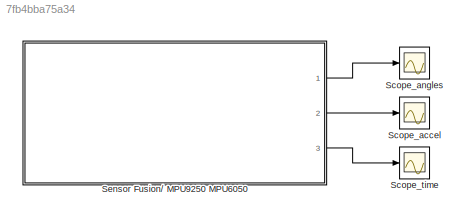
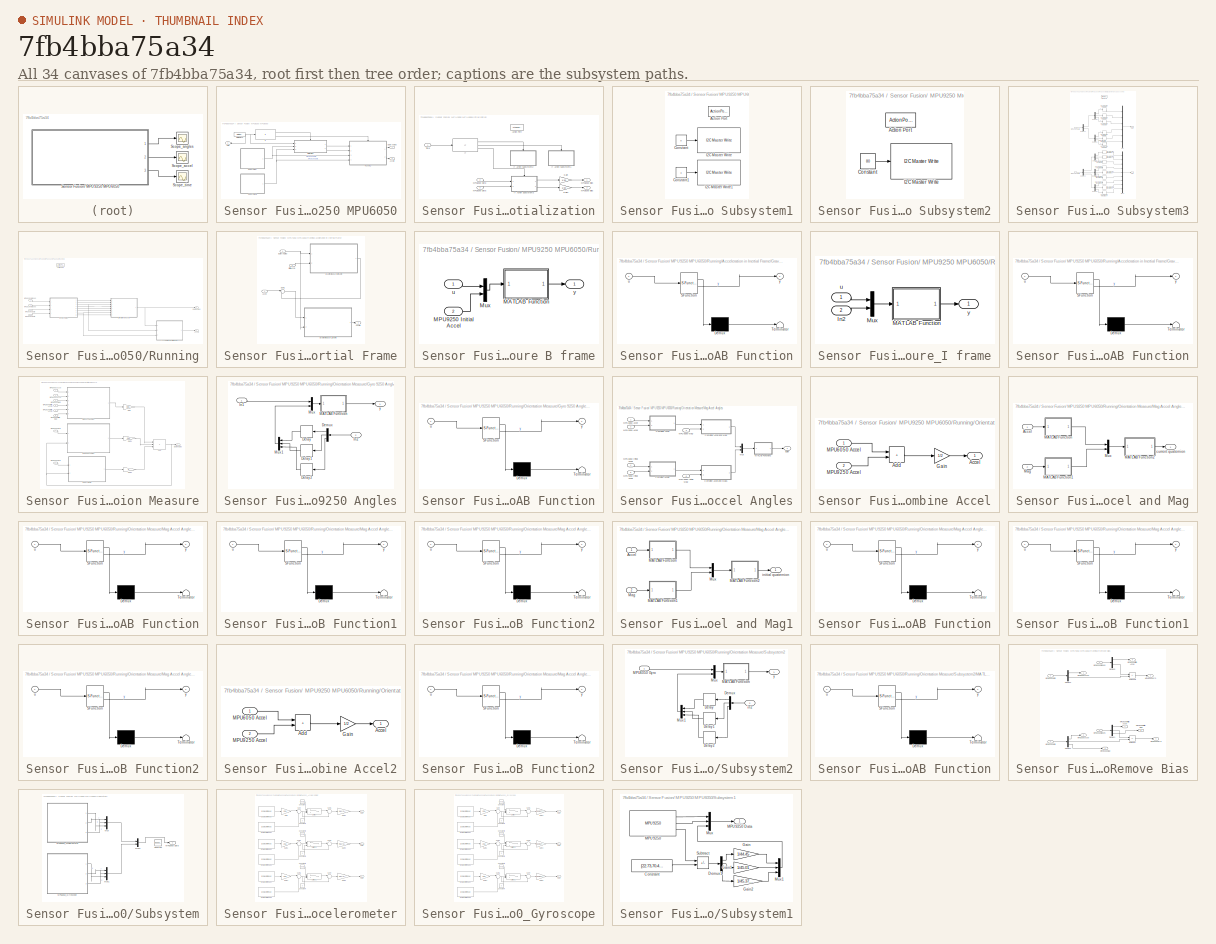
[diagram: thumbnail index - all 34 canvases of the model, root first then tree order]
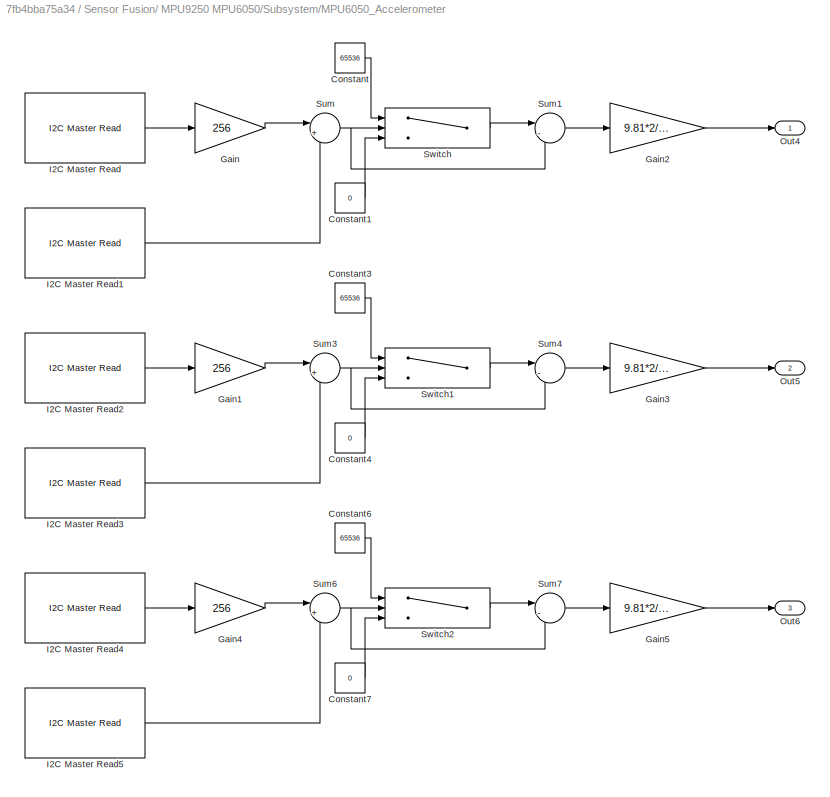
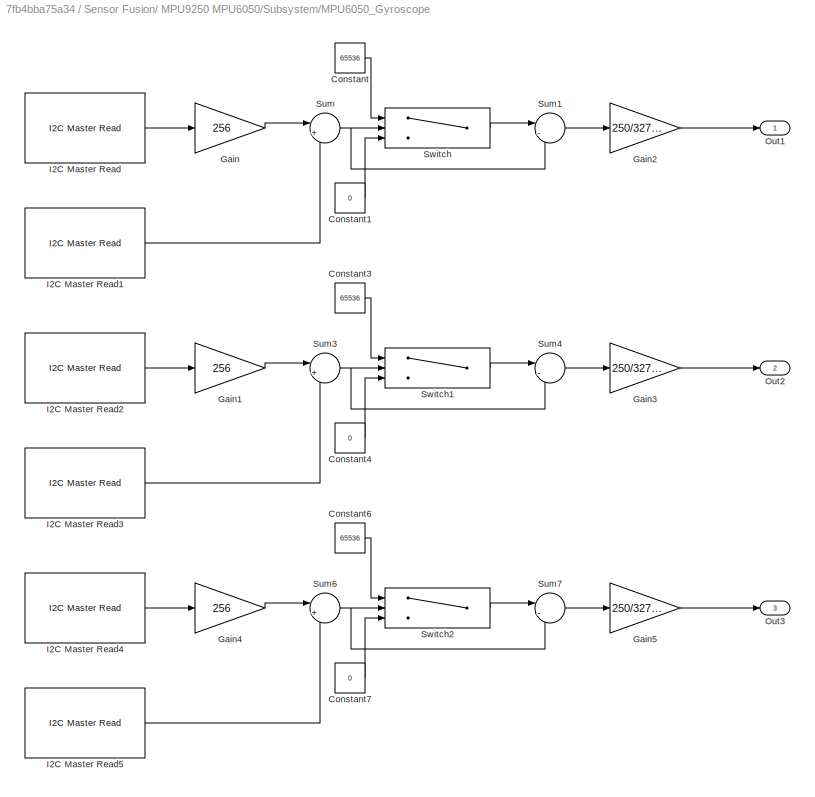
MODEL slx_7fb4bba75a34
KIND model
CONFIG AbsTol = auto
CONFIG EnableMultiTasking = on
CONFIG FixedStep = auto
CONFIG MaxStep = auto
CONFIG MinStep = auto
CONFIG RelTol = 1e-3
CONFIG SampleTimeConstraint = Unconstrained
CONFIG SolverName = FixedStepAuto
CONFIG StartTime = 0.0
CONFIG StopTime = 2000
BLOCK [Scope] Scope_accel
  Floating = off
  NumInputPorts = 1
  Ports = [1]
  ScopeSpecificationString = Simulink.scopes.TimeScopeBlockCfg('CurrentConfiguration', extmgr.ConfigurationSet(extmgr.Configuration('Core','General UI',true),extmgr.Configuration('Core','Source UI',true),extmgr.Configuration('Sources','WiredSimulink',true,'DataLoggingVariableName','ScopeData2'),extmgr.Configuration('Visuals','Time Domain',true,'SerializedDisplays',{struct('MinYLimReal','-1.65482','MaxYLimReal','3.68909','YLab...<+1486ch>
BLOCK [Scope] Scope_angles
  ExtModeLoggingTrig = on
  Floating = off
  NumInputPorts = 1
  Ports = [1]
  ScopeSpecificationString = Simulink.scopes.TimeScopeBlockCfg('CurrentConfiguration', extmgr.ConfigurationSet(extmgr.Configuration('Core','General UI',true),extmgr.Configuration('Core','Source UI',true),extmgr.Configuration('Sources','WiredSimulink',true,'DataLoggingVariableName','ScopeData1','DataLogging',true,'DataLoggingSaveFormat','StructureWithTime'),extmgr.Configuration('Visuals','Time Domain',true,'SerializedDisplays'...<+1667ch>
BLOCK [Scope] Scope_time
  Floating = off
  NumInputPorts = 1
  Ports = [1]
  ScopeSpecificationString = Simulink.scopes.TimeScopeBlockCfg('CurrentConfiguration', extmgr.ConfigurationSet(extmgr.Configuration('Core','General UI',true),extmgr.Configuration('Core','Source UI',true),extmgr.Configuration('Sources','WiredSimulink',true,'DataLoggingVariableName','ScopeData1','DataLogging',true,'DataLoggingSaveFormat','StructureWithTime'),extmgr.Configuration('Visuals','Time Domain',true,'SerializedDisplays'...<+1559ch>
BLOCK [SubSystem] Sensor Fusion// MPU9250 MPU6050
  Ports = [0, 3]
  RequestExecContextInheritance = off
BLOCK [Outport] Sensor Fusion// MPU9250 MPU6050/Accel//I
  Port = 2
BLOCK [DigitalClock] Sensor Fusion// MPU9250 MPU6050/Digital Clock
  SampleTime = 0.1
BLOCK [Outport] Sensor Fusion// MPU9250 MPU6050/Euler Angles
BLOCK [If] Sensor Fusion// MPU9250 MPU6050/If
  IfExpression = u1 < 31
  Ports = [1, 2]
BLOCK [SubSystem] Sensor Fusion// MPU9250 MPU6050/Intialization
  Ports = [3, 2, 0, 0, 0, 0, 0, 1]
  RequestExecContextInheritance = off
  TreatAsAtomicUnit = on
BLOCK [ActionPort] Sensor Fusion// MPU9250 MPU6050/Intialization/Action Port
  ActionPortLabel = if(u1 < 31)
BLOCK [Gain] Sensor Fusion// MPU9250 MPU6050/Intialization/Gain
  Gain = 1/30
BLOCK [Gain] Sensor Fusion// MPU9250 MPU6050/Intialization/Gain1
  Gain = 1/30
BLOCK [If] Sensor Fusion// MPU9250 MPU6050/Intialization/If
  ElseIfExpressions = u1<=1
  IfExpression = u1 < 0.2
  Ports = [1, 3]
BLOCK [SubSystem] Sensor Fusion// MPU9250 MPU6050/Intialization/If Action Subsystem1
  Ports = [0, 0, 0, 0, 0, 0, 0, 1]
  RequestExecContextInheritance = off
  TreatAsAtomicUnit = on
BLOCK [ActionPort] Sensor Fusion// MPU9250 MPU6050/Intialization/If Action Subsystem1/Action Port
  ActionPortLabel = elseif(u1<=1)
BLOCK [Constant] Sensor Fusion// MPU9250 MPU6050/Intialization/If Action Subsystem1/Constant
  Value = 0
BLOCK [Constant] Sensor Fusion// MPU9250 MPU6050/Intialization/If Action Subsystem1/Constant1
  Value = 3
BLOCK [Reference] Sensor Fusion// MPU9250 MPU6050/Intialization/If Action Subsystem1/I2C Master Write  REF=bbblueCommlib/I2C Master Write
  Ports = [1]
  SourceBlock = bbblueCommlib/I2C Master Write
  SourceProductBaseCode = SC_BEAGLEBONE_BLUE
  SourceType = beagleboneblue.bbblueI2CMasterWrite
BLOCK [Reference] Sensor Fusion// MPU9250 MPU6050/Intialization/If Action Subsystem1/I2C Master Write1  REF=bbblueCommlib/I2C Master Write
  Ports = [1]
  SourceBlock = bbblueCommlib/I2C Master Write
  SourceProductBaseCode = SC_BEAGLEBONE_BLUE
  SourceType = beagleboneblue.bbblueI2CMasterWrite
BLOCK [SubSystem] Sensor Fusion// MPU9250 MPU6050/Intialization/If Action Subsystem2
  Ports = [0, 0, 0, 0, 0, 0, 0, 1]
  RequestExecContextInheritance = off
  TreatAsAtomicUnit = on
BLOCK [ActionPort] Sensor Fusion// MPU9250 MPU6050/Intialization/If Action Subsystem2/Action Port
  ActionPortLabel = if(u1 < 0.2)
BLOCK [Constant] Sensor Fusion// MPU9250 MPU6050/Intialization/If Action Subsystem2/Constant
  Value = 80
BLOCK [Reference] Sensor Fusion// MPU9250 MPU6050/Intialization/If Action Subsystem2/I2C Master Write  REF=bbblueCommlib/I2C Master Write
  Ports = [1]
  SourceBlock = bbblueCommlib/I2C Master Write
  SourceProductBaseCode = SC_BEAGLEBONE_BLUE
  SourceType = beagleboneblue.bbblueI2CMasterWrite
BLOCK [SubSystem] Sensor Fusion// MPU9250 MPU6050/Intialization/If Action Subsystem3
  Ports = [2, 2, 0, 0, 0, 0, 0, 1]
  RequestExecContextInheritance = off
  TreatAsAtomicUnit = on
BLOCK [ActionPort] Sensor Fusion// MPU9250 MPU6050/Intialization/If Action Subsystem3/Action Port
  ActionPortLabel = else
BLOCK [Demux] Sensor Fusion// MPU9250 MPU6050/Intialization/If Action Subsystem3/Demux
  Outputs = 3
  Ports = [1, 3]
BLOCK [Demux] Sensor Fusion// MPU9250 MPU6050/Intialization/If Action Subsystem3/Demux1
  Outputs = 3
  Ports = [1, 3]
BLOCK [Demux] Sensor Fusion// MPU9250 MPU6050/Intialization/If Action Subsystem3/Demux2
  Outputs = 3
  Ports = [1, 3]
BLOCK [Demux] Sensor Fusion// MPU9250 MPU6050/Intialization/If Action Subsystem3/Demux3
  Outputs = 3
  Ports = [1, 3]
BLOCK [Demux] Sensor Fusion// MPU9250 MPU6050/Intialization/If Action Subsystem3/Demux4
  Outputs = 2
  Ports = [1, 2]
BLOCK [Demux] Sensor Fusion// MPU9250 MPU6050/Intialization/If Action Subsystem3/Demux5
  Outputs = 3
  Ports = [1, 3]
BLOCK [Demux] Sensor Fusion// MPU9250 MPU6050/Intialization/If Action Subsystem3/Demux6
  Outputs = 3
  Ports = [1, 3]
BLOCK [DiscreteIntegrator] Sensor Fusion// MPU9250 MPU6050/Intialization/If Action Subsystem3/Discrete-Time Integrator
  ICPrevOutput = DiscIntNeverNeededParam
  ICPrevScaledInput = DiscIntNeverNeededParam
  InitialConditionSetting = Auto
  Ports = [1, 1]
  SampleTime = -1
BLOCK [DiscreteIntegrator] Sensor Fusion// MPU9250 MPU6050/Intialization/If Action Subsystem3/Discrete-Time Integrator1
  ICPrevOutput = DiscIntNeverNeededParam
  ICPrevScaledInput = DiscIntNeverNeededParam
  InitialConditionSetting = Auto
  Ports = [1, 1]
  SampleTime = -1
BLOCK [DiscreteIntegrator] Sensor Fusion// MPU9250 MPU6050/Intialization/If Action Subsystem3/Discrete-Time Integrator10
  ICPrevOutput = DiscIntNeverNeededParam
  ICPrevScaledInput = DiscIntNeverNeededParam
  InitialConditionSetting = Auto
  Ports = [1, 1]
  SampleTime = -1
BLOCK [DiscreteIntegrator] Sensor Fusion// MPU9250 MPU6050/Intialization/If Action Subsystem3/Discrete-Time Integrator11
  ICPrevOutput = DiscIntNeverNeededParam
  ICPrevScaledInput = DiscIntNeverNeededParam
  InitialConditionSetting = Auto
  Ports = [1, 1]
  SampleTime = -1
BLOCK [DiscreteIntegrator] Sensor Fusion// MPU9250 MPU6050/Intialization/If Action Subsystem3/Discrete-Time Integrator12
  ICPrevOutput = DiscIntNeverNeededParam
  ICPrevScaledInput = DiscIntNeverNeededParam
  InitialConditionSetting = Auto
  Ports = [1, 1]
  SampleTime = -1
BLOCK [DiscreteIntegrator] Sensor Fusion// MPU9250 MPU6050/Intialization/If Action Subsystem3/Discrete-Time Integrator13
  ICPrevOutput = DiscIntNeverNeededParam
  ICPrevScaledInput = DiscIntNeverNeededParam
  InitialConditionSetting = Auto
  Ports = [1, 1]
  SampleTime = -1
BLOCK [DiscreteIntegrator] Sensor Fusion// MPU9250 MPU6050/Intialization/If Action Subsystem3/Discrete-Time Integrator14
  ICPrevOutput = DiscIntNeverNeededParam
  ICPrevScaledInput = DiscIntNeverNeededParam
  InitialConditionSetting = Auto
  Ports = [1, 1]
  SampleTime = -1
BLOCK [DiscreteIntegrator] Sensor Fusion// MPU9250 MPU6050/Intialization/If Action Subsystem3/Discrete-Time Integrator2
  ICPrevOutput = DiscIntNeverNeededParam
  ICPrevScaledInput = DiscIntNeverNeededParam
  InitialConditionSetting = Auto
  Ports = [1, 1]
  SampleTime = -1
BLOCK [DiscreteIntegrator] Sensor Fusion// MPU9250 MPU6050/Intialization/If Action Subsystem3/Discrete-Time Integrator3
  ICPrevOutput = DiscIntNeverNeededParam
  ICPrevScaledInput = DiscIntNeverNeededParam
  InitialConditionSetting = Auto
  Ports = [1, 1]
  SampleTime = -1
BLOCK [DiscreteIntegrator] Sensor Fusion// MPU9250 MPU6050/Intialization/If Action Subsystem3/Discrete-Time Integrator4
  ICPrevOutput = DiscIntNeverNeededParam
  ICPrevScaledInput = DiscIntNeverNeededParam
  InitialConditionSetting = Auto
  Ports = [1, 1]
  SampleTime = -1
BLOCK [DiscreteIntegrator] Sensor Fusion// MPU9250 MPU6050/Intialization/If Action Subsystem3/Discrete-Time Integrator5
  ICPrevOutput = DiscIntNeverNeededParam
  ICPrevScaledInput = DiscIntNeverNeededParam
  InitialConditionSetting = Auto
  Ports = [1, 1]
  SampleTime = -1
BLOCK [DiscreteIntegrator] Sensor Fusion// MPU9250 MPU6050/Intialization/If Action Subsystem3/Discrete-Time Integrator6
  ICPrevOutput = DiscIntNeverNeededParam
  ICPrevScaledInput = DiscIntNeverNeededParam
  InitialConditionSetting = Auto
  Ports = [1, 1]
  SampleTime = -1
BLOCK [DiscreteIntegrator] Sensor Fusion// MPU9250 MPU6050/Intialization/If Action Subsystem3/Discrete-Time Integrator7
  ICPrevOutput = DiscIntNeverNeededParam
  ICPrevScaledInput = DiscIntNeverNeededParam
  InitialConditionSetting = Auto
  Ports = [1, 1]
  SampleTime = -1
BLOCK [DiscreteIntegrator] Sensor Fusion// MPU9250 MPU6050/Intialization/If Action Subsystem3/Discrete-Time Integrator8
  ICPrevOutput = DiscIntNeverNeededParam
  ICPrevScaledInput = DiscIntNeverNeededParam
  InitialConditionSetting = Auto
  Ports = [1, 1]
  SampleTime = -1
BLOCK [DiscreteIntegrator] Sensor Fusion// MPU9250 MPU6050/Intialization/If Action Subsystem3/Discrete-Time Integrator9
  ICPrevOutput = DiscIntNeverNeededParam
  ICPrevScaledInput = DiscIntNeverNeededParam
  InitialConditionSetting = Auto
  Ports = [1, 1]
  SampleTime = -1
BLOCK [Inport] Sensor Fusion// MPU9250 MPU6050/Intialization/If Action Subsystem3/MPU6050 Data
BLOCK [Inport] Sensor Fusion// MPU9250 MPU6050/Intialization/If Action Subsystem3/MPU9250 Data
  Port = 2
BLOCK [Mux] Sensor Fusion// MPU9250 MPU6050/Intialization/If Action Subsystem3/Mux
  DisplayOption = bar
  Inputs = 6
  Ports = [6, 1]
BLOCK [Mux] Sensor Fusion// MPU9250 MPU6050/Intialization/If Action Subsystem3/Mux1
  DisplayOption = bar
  Inputs = 9
  Ports = [9, 1]
BLOCK [Outport] Sensor Fusion// MPU9250 MPU6050/Intialization/If Action Subsystem3/Out1
BLOCK [Outport] Sensor Fusion// MPU9250 MPU6050/Intialization/If Action Subsystem3/Out2
  Port = 2
BLOCK [Outport] Sensor Fusion// MPU9250 MPU6050/Intialization/MPU6050 Bias
BLOCK [Inport] Sensor Fusion// MPU9250 MPU6050/Intialization/MPU6050 Data
  Port = 2
BLOCK [Outport] Sensor Fusion// MPU9250 MPU6050/Intialization/MPU9250 Bias
  Port = 2
BLOCK [Inport] Sensor Fusion// MPU9250 MPU6050/Intialization/MPU9250 Data
  Port = 3
BLOCK [Inport] Sensor Fusion// MPU9250 MPU6050/Intialization/Time
BLOCK [SubSystem] Sensor Fusion// MPU9250 MPU6050/Running
  Ports = [4, 2, 0, 0, 0, 0, 0, 1]
  RequestExecContextInheritance = off
  TreatAsAtomicUnit = on
BLOCK [Outport] Sensor Fusion// MPU9250 MPU6050/Running/Accel//I
  Port = 2
BLOCK [SubSystem] Sensor Fusion// MPU9250 MPU6050/Running/Acceleration in Inertial Frame
  Ports = [3, 1]
  RequestExecContextInheritance = off
BLOCK [Inport] Sensor Fusion// MPU9250 MPU6050/Running/Acceleration in Inertial Frame/Accel
  Port = 2
BLOCK [Outport] Sensor Fusion// MPU9250 MPU6050/Running/Acceleration in Inertial Frame/Accel//I
BLOCK [Inport] Sensor Fusion// MPU9250 MPU6050/Running/Acceleration in Inertial Frame/Euler Angles
BLOCK [SubSystem] Sensor Fusion// MPU9250 MPU6050/Running/Acceleration in Inertial Frame/Gravity Measure B frame
  Ports = [2, 1]
  RequestExecContextInheritance = off
BLOCK [SubSystem] Sensor Fusion// MPU9250 MPU6050/Running/Acceleration in Inertial Frame/Gravity Measure B frame/MATLAB Function
  ErrorFcn = Stateflow.Translate.translate
  PermitHierarchicalResolution = ExplicitOnly
  Ports = [1, 1]
  RequestExecContextInheritance = off
  SFBlockType = MATLAB Function
  TreatAsAtomicUnit = on
BLOCK [Demux] Sensor Fusion// MPU9250 MPU6050/Running/Acceleration in Inertial Frame/Gravity Measure B frame/MATLAB Function/ Demux 
  Outputs = 1
  Ports = [1, 1]
BLOCK [S-Function] Sensor Fusion// MPU9250 MPU6050/Running/Acceleration in Inertial Frame/Gravity Measure B frame/MATLAB Function/ SFunction 
  EnableBusSupport = on
  FunctionName = sf_sfun
  PortCounts = [1 2]
  Ports = [1, 2]
  SFcnIsStateOwnerBlock = off
  SFunctionDeploymentMode = off
  Tag = Stateflow S-Function 12
BLOCK [Terminator] Sensor Fusion// MPU9250 MPU6050/Running/Acceleration in Inertial Frame/Gravity Measure B frame/MATLAB Function/ Terminator 
BLOCK [Inport] Sensor Fusion// MPU9250 MPU6050/Running/Acceleration in Inertial Frame/Gravity Measure B frame/MATLAB Function/u
BLOCK [Outport] Sensor Fusion// MPU9250 MPU6050/Running/Acceleration in Inertial Frame/Gravity Measure B frame/MATLAB Function/y
BLOCK [Inport] Sensor Fusion// MPU9250 MPU6050/Running/Acceleration in Inertial Frame/Gravity Measure B frame/MPU9250 Initial Accel
  Port = 2
BLOCK [Mux] Sensor Fusion// MPU9250 MPU6050/Running/Acceleration in Inertial Frame/Gravity Measure B frame/Mux
  DisplayOption = bar
  Inputs = 2
  Ports = [2, 1]
BLOCK [Inport] Sensor Fusion// MPU9250 MPU6050/Running/Acceleration in Inertial Frame/Gravity Measure B frame/u
BLOCK [Outport] Sensor Fusion// MPU9250 MPU6050/Running/Acceleration in Inertial Frame/Gravity Measure B frame/y
BLOCK [SubSystem] Sensor Fusion// MPU9250 MPU6050/Running/Acceleration in Inertial Frame/Gravity Measure_I frame
  Ports = [2, 1]
  RequestExecContextInheritance = off
BLOCK [Inport] Sensor Fusion// MPU9250 MPU6050/Running/Acceleration in Inertial Frame/Gravity Measure_I frame/In2
  Port = 2
BLOCK [SubSystem] Sensor Fusion// MPU9250 MPU6050/Running/Acceleration in Inertial Frame/Gravity Measure_I frame/MATLAB Function
  ErrorFcn = Stateflow.Translate.translate
  PermitHierarchicalResolution = ExplicitOnly
  Ports = [1, 1]
  RequestExecContextInheritance = off
  SFBlockType = MATLAB Function
  TreatAsAtomicUnit = on
BLOCK [Demux] Sensor Fusion// MPU9250 MPU6050/Running/Acceleration in Inertial Frame/Gravity Measure_I frame/MATLAB Function/ Demux 
  Outputs = 1
  Ports = [1, 1]
BLOCK [S-Function] Sensor Fusion// MPU9250 MPU6050/Running/Acceleration in Inertial Frame/Gravity Measure_I frame/MATLAB Function/ SFunction 
  EnableBusSupport = on
  FunctionName = sf_sfun
  PortCounts = [1 2]
  Ports = [1, 2]
  SFcnIsStateOwnerBlock = off
  SFunctionDeploymentMode = off
  Tag = Stateflow S-Function 14
BLOCK [Terminator] Sensor Fusion// MPU9250 MPU6050/Running/Acceleration in Inertial Frame/Gravity Measure_I frame/MATLAB Function/ Terminator 
BLOCK [Inport] Sensor Fusion// MPU9250 MPU6050/Running/Acceleration in Inertial Frame/Gravity Measure_I frame/MATLAB Function/u
BLOCK [Outport] Sensor Fusion// MPU9250 MPU6050/Running/Acceleration in Inertial Frame/Gravity Measure_I frame/MATLAB Function/y
BLOCK [Mux] Sensor Fusion// MPU9250 MPU6050/Running/Acceleration in Inertial Frame/Gravity Measure_I frame/Mux
  DisplayOption = bar
  Inputs = 2
  Ports = [2, 1]
BLOCK [Inport] Sensor Fusion// MPU9250 MPU6050/Running/Acceleration in Inertial Frame/Gravity Measure_I frame/u
BLOCK [Outport] Sensor Fusion// MPU9250 MPU6050/Running/Acceleration in Inertial Frame/Gravity Measure_I frame/y
BLOCK [Inport] Sensor Fusion// MPU9250 MPU6050/Running/Acceleration in Inertial Frame/Initial Accel
  Port = 3
BLOCK [Sum] Sensor Fusion// MPU9250 MPU6050/Running/Acceleration in Inertial Frame/Sum1
  Inputs = |+-
  Ports = [2, 1]
BLOCK [ActionPort] Sensor Fusion// MPU9250 MPU6050/Running/Action Port
  ActionPortLabel = else
BLOCK [Outport] Sensor Fusion// MPU9250 MPU6050/Running/Euler Angles
BLOCK [Inport] Sensor Fusion// MPU9250 MPU6050/Running/MPU6050 Biases
BLOCK [Inport] Sensor Fusion// MPU9250 MPU6050/Running/MPU6050 Data
  Port = 3
BLOCK [Inport] Sensor Fusion// MPU9250 MPU6050/Running/MPU9250 Biases
  Port = 2
BLOCK [Inport] Sensor Fusion// MPU9250 MPU6050/Running/MPU9250 Data
  Port = 4
BLOCK [SubSystem] Sensor Fusion// MPU9250 MPU6050/Running/Orientation Measure
  Ports = [8, 1]
  RequestExecContextInheritance = off
BLOCK [Inport] Sensor Fusion// MPU9250 MPU6050/Running/Orientation Measure/ MPU9250 Mag
  Port = 5
BLOCK [Outport] Sensor Fusion// MPU9250 MPU6050/Running/Orientation Measure/Euler Angles
BLOCK [Gain] Sensor Fusion// MPU9250 MPU6050/Running/Orientation Measure/Gain
  Gain = 0.05
BLOCK [Gain] Sensor Fusion// MPU9250 MPU6050/Running/Orientation Measure/Gain1
  Gain = 0.95
BLOCK [Gain] Sensor Fusion// MPU9250 MPU6050/Running/Orientation Measure/Gain2
  Gain = 0
BLOCK [SubSystem] Sensor Fusion// MPU9250 MPU6050/Running/Orientation Measure/Gyro 9250 Angles
  Ports = [2, 1]
  RequestExecContextInheritance = off
BLOCK [Delay] Sensor Fusion// MPU9250 MPU6050/Running/Orientation Measure/Gyro 9250 Angles/Delay
  DelayLength = 1
  InputPortMap = u0
  Ports = [1, 1]
BLOCK [Delay] Sensor Fusion// MPU9250 MPU6050/Running/Orientation Measure/Gyro 9250 Angles/Delay1
  DelayLength = 1
  InputPortMap = u0
  Ports = [1, 1]
BLOCK [Delay] Sensor Fusion// MPU9250 MPU6050/Running/Orientation Measure/Gyro 9250 Angles/Delay2
  DelayLength = 1
  InputPortMap = u0
  Ports = [1, 1]
BLOCK [Demux] Sensor Fusion// MPU9250 MPU6050/Running/Orientation Measure/Gyro 9250 Angles/Demux
  Outputs = 3
  Ports = [1, 3]
BLOCK [Inport] Sensor Fusion// MPU9250 MPU6050/Running/Orientation Measure/Gyro 9250 Angles/In1
BLOCK [Inport] Sensor Fusion// MPU9250 MPU6050/Running/Orientation Measure/Gyro 9250 Angles/In2
  Port = 2
BLOCK [SubSystem] Sensor Fusion// MPU9250 MPU6050/Running/Orientation Measure/Gyro 9250 Angles/MATLAB Function
  ErrorFcn = Stateflow.Translate.translate
  PermitHierarchicalResolution = ExplicitOnly
  Ports = [1, 1]
  RequestExecContextInheritance = off
  SFBlockType = MATLAB Function
  TreatAsAtomicUnit = on
BLOCK [Demux] Sensor Fusion// MPU9250 MPU6050/Running/Orientation Measure/Gyro 9250 Angles/MATLAB Function/ Demux 
  Outputs = 1
  Ports = [1, 1]
BLOCK [S-Function] Sensor Fusion// MPU9250 MPU6050/Running/Orientation Measure/Gyro 9250 Angles/MATLAB Function/ SFunction 
  EnableBusSupport = on
  FunctionName = sf_sfun
  PortCounts = [1 2]
  Ports = [1, 2]
  SFcnIsStateOwnerBlock = off
  SFunctionDeploymentMode = off
  Tag = Stateflow S-Function 4
BLOCK [Terminator] Sensor Fusion// MPU9250 MPU6050/Running/Orientation Measure/Gyro 9250 Angles/MATLAB Function/ Terminator 
BLOCK [Inport] Sensor Fusion// MPU9250 MPU6050/Running/Orientation Measure/Gyro 9250 Angles/MATLAB Function/u
BLOCK [Outport] Sensor Fusion// MPU9250 MPU6050/Running/Orientation Measure/Gyro 9250 Angles/MATLAB Function/y
BLOCK [Mux] Sensor Fusion// MPU9250 MPU6050/Running/Orientation Measure/Gyro 9250 Angles/Mux
  DisplayOption = bar
  Inputs = 2
  Ports = [2, 1]
BLOCK [Mux] Sensor Fusion// MPU9250 MPU6050/Running/Orientation Measure/Gyro 9250 Angles/Mux1
  DisplayOption = bar
  Inputs = 3
  Ports = [3, 1]
BLOCK [Outport] Sensor Fusion// MPU9250 MPU6050/Running/Orientation Measure/Gyro 9250 Angles/y
BLOCK [Inport] Sensor Fusion// MPU9250 MPU6050/Running/Orientation Measure/MPU6050 Accel
BLOCK [Inport] Sensor Fusion// MPU9250 MPU6050/Running/Orientation Measure/MPU6050 Gyro
  Port = 2
BLOCK [Inport] Sensor Fusion// MPU9250 MPU6050/Running/Orientation Measure/MPU6050 Initial Accel
  Port = 6
BLOCK [Inport] Sensor Fusion// MPU9250 MPU6050/Running/Orientation Measure/MPU9250 Accel
  Port = 3
BLOCK [Inport] Sensor Fusion// MPU9250 MPU6050/Running/Orientation Measure/MPU9250 Gyro
  Port = 4
BLOCK [Inport] Sensor Fusion// MPU9250 MPU6050/Running/Orientation Measure/MPU9250 Initial Accel
  Port = 7
BLOCK [Inport] Sensor Fusion// MPU9250 MPU6050/Running/Orientation Measure/MPU9250 Initial Mag
  Port = 8
BLOCK [SubSystem] Sensor Fusion// MPU9250 MPU6050/Running/Orientation Measure/Mag Accel Angles
  Ports = [6, 1]
  RequestExecContextInheritance = off
BLOCK [Inport] Sensor Fusion// MPU9250 MPU6050/Running/Orientation Measure/Mag Accel Angles/ MPU9250 Mag
  Port = 3
BLOCK [SubSystem] Sensor Fusion// MPU9250 MPU6050/Running/Orientation Measure/Mag Accel Angles/Combine Accel
  Ports = [2, 1]
  RequestExecContextInheritance = off
BLOCK [SubSystem] Sensor Fusion// MPU9250 MPU6050/Running/Orientation Measure/Mag Accel Angles/Combine Accel and Mag
  Ports = [2, 1]
  RequestExecContextInheritance = off
BLOCK [Inport] Sensor Fusion// MPU9250 MPU6050/Running/Orientation Measure/Mag Accel Angles/Combine Accel and Mag/ Mag
  Port = 2
BLOCK [Inport] Sensor Fusion// MPU9250 MPU6050/Running/Orientation Measure/Mag Accel Angles/Combine Accel and Mag/Accel
BLOCK [SubSystem] Sensor Fusion// MPU9250 MPU6050/Running/Orientation Measure/Mag Accel Angles/Combine Accel and Mag/MATLAB Function
  ErrorFcn = Stateflow.Translate.translate
  PermitHierarchicalResolution = ExplicitOnly
  Ports = [1, 1]
  RequestExecContextInheritance = off
  SFBlockType = MATLAB Function
  TreatAsAtomicUnit = on
BLOCK [Demux] Sensor Fusion// MPU9250 MPU6050/Running/Orientation Measure/Mag Accel Angles/Combine Accel and Mag/MATLAB Function/ Demux 
  Outputs = 1
  Ports = [1, 1]
BLOCK [S-Function] Sensor Fusion// MPU9250 MPU6050/Running/Orientation Measure/Mag Accel Angles/Combine Accel and Mag/MATLAB Function/ SFunction 
  EnableBusSupport = on
  FunctionName = sf_sfun
  PortCounts = [1 2]
  Ports = [1, 2]
  SFcnIsStateOwnerBlock = off
  SFunctionDeploymentMode = off
  Tag = Stateflow S-Function 2
BLOCK [Terminator] Sensor Fusion// MPU9250 MPU6050/Running/Orientation Measure/Mag Accel Angles/Combine Accel and Mag/MATLAB Function/ Terminator 
BLOCK [Inport] Sensor Fusion// MPU9250 MPU6050/Running/Orientation Measure/Mag Accel Angles/Combine Accel and Mag/MATLAB Function/u
BLOCK [Outport] Sensor Fusion// MPU9250 MPU6050/Running/Orientation Measure/Mag Accel Angles/Combine Accel and Mag/MATLAB Function/y
BLOCK [SubSystem] Sensor Fusion// MPU9250 MPU6050/Running/Orientation Measure/Mag Accel Angles/Combine Accel and Mag/MATLAB Function1
  ErrorFcn = Stateflow.Translate.translate
  PermitHierarchicalResolution = ExplicitOnly
  Ports = [1, 1]
  RequestExecContextInheritance = off
  SFBlockType = MATLAB Function
  TreatAsAtomicUnit = on
BLOCK [Demux] Sensor Fusion// MPU9250 MPU6050/Running/Orientation Measure/Mag Accel Angles/Combine Accel and Mag/MATLAB Function1/ Demux 
  Outputs = 1
  Ports = [1, 1]
BLOCK [S-Function] Sensor Fusion// MPU9250 MPU6050/Running/Orientation Measure/Mag Accel Angles/Combine Accel and Mag/MATLAB Function1/ SFunction 
  EnableBusSupport = on
  FunctionName = sf_sfun
  PortCounts = [1 2]
  Ports = [1, 2]
  SFcnIsStateOwnerBlock = off
  SFunctionDeploymentMode = off
  Tag = Stateflow S-Function 1
BLOCK [Terminator] Sensor Fusion// MPU9250 MPU6050/Running/Orientation Measure/Mag Accel Angles/Combine Accel and Mag/MATLAB Function1/ Terminator 
BLOCK [Inport] Sensor Fusion// MPU9250 MPU6050/Running/Orientation Measure/Mag Accel Angles/Combine Accel and Mag/MATLAB Function1/u
BLOCK [Outport] Sensor Fusion// MPU9250 MPU6050/Running/Orientation Measure/Mag Accel Angles/Combine Accel and Mag/MATLAB Function1/y
BLOCK [SubSystem] Sensor Fusion// MPU9250 MPU6050/Running/Orientation Measure/Mag Accel Angles/Combine Accel and Mag/MATLAB Function2
  ErrorFcn = Stateflow.Translate.translate
  PermitHierarchicalResolution = ExplicitOnly
  Ports = [1, 1]
  RequestExecContextInheritance = off
  SFBlockType = MATLAB Function
  TreatAsAtomicUnit = on
BLOCK [Demux] Sensor Fusion// MPU9250 MPU6050/Running/Orientation Measure/Mag Accel Angles/Combine Accel and Mag/MATLAB Function2/ Demux 
  Outputs = 1
  Ports = [1, 1]
BLOCK [S-Function] Sensor Fusion// MPU9250 MPU6050/Running/Orientation Measure/Mag Accel Angles/Combine Accel and Mag/MATLAB Function2/ SFunction 
  EnableBusSupport = on
  FunctionName = sf_sfun
  PortCounts = [1 2]
  Ports = [1, 2]
  SFcnIsStateOwnerBlock = off
  SFunctionDeploymentMode = off
  Tag = Stateflow S-Function 3
BLOCK [Terminator] Sensor Fusion// MPU9250 MPU6050/Running/Orientation Measure/Mag Accel Angles/Combine Accel and Mag/MATLAB Function2/ Terminator 
BLOCK [Inport] Sensor Fusion// MPU9250 MPU6050/Running/Orientation Measure/Mag Accel Angles/Combine Accel and Mag/MATLAB Function2/u
BLOCK [Outport] Sensor Fusion// MPU9250 MPU6050/Running/Orientation Measure/Mag Accel Angles/Combine Accel and Mag/MATLAB Function2/y
BLOCK [Mux] Sensor Fusion// MPU9250 MPU6050/Running/Orientation Measure/Mag Accel Angles/Combine Accel and Mag/Mux
  DisplayOption = bar
  Inputs = 2
  Ports = [2, 1]
BLOCK [Outport] Sensor Fusion// MPU9250 MPU6050/Running/Orientation Measure/Mag Accel Angles/Combine Accel and Mag/current quaternion
BLOCK [SubSystem] Sensor Fusion// MPU9250 MPU6050/Running/Orientation Measure/Mag Accel Angles/Combine Accel and Mag1
  Ports = [2, 1]
  RequestExecContextInheritance = off
BLOCK [Inport] Sensor Fusion// MPU9250 MPU6050/Running/Orientation Measure/Mag Accel Angles/Combine Accel and Mag1/ Mag
  Port = 2
BLOCK [Inport] Sensor Fusion// MPU9250 MPU6050/Running/Orientation Measure/Mag Accel Angles/Combine Accel and Mag1/Accel
BLOCK [SubSystem] Sensor Fusion// MPU9250 MPU6050/Running/Orientation Measure/Mag Accel Angles/Combine Accel and Mag1/MATLAB Function
  ErrorFcn = Stateflow.Translate.translate
  PermitHierarchicalResolution = ExplicitOnly
  Ports = [1, 1]
  RequestExecContextInheritance = off
  SFBlockType = MATLAB Function
  TreatAsAtomicUnit = on
BLOCK [Demux] Sensor Fusion// MPU9250 MPU6050/Running/Orientation Measure/Mag Accel Angles/Combine Accel and Mag1/MATLAB Function/ Demux 
  Outputs = 1
  Ports = [1, 1]
BLOCK [S-Function] Sensor Fusion// MPU9250 MPU6050/Running/Orientation Measure/Mag Accel Angles/Combine Accel and Mag1/MATLAB Function/ SFunction 
  EnableBusSupport = on
  FunctionName = sf_sfun
  PortCounts = [1 2]
  Ports = [1, 2]
  SFcnIsStateOwnerBlock = off
  SFunctionDeploymentMode = off
  Tag = Stateflow S-Function 7
BLOCK [Terminator] Sensor Fusion// MPU9250 MPU6050/Running/Orientation Measure/Mag Accel Angles/Combine Accel and Mag1/MATLAB Function/ Terminator 
BLOCK [Inport] Sensor Fusion// MPU9250 MPU6050/Running/Orientation Measure/Mag Accel Angles/Combine Accel and Mag1/MATLAB Function/u
BLOCK [Outport] Sensor Fusion// MPU9250 MPU6050/Running/Orientation Measure/Mag Accel Angles/Combine Accel and Mag1/MATLAB Function/y
BLOCK [SubSystem] Sensor Fusion// MPU9250 MPU6050/Running/Orientation Measure/Mag Accel Angles/Combine Accel and Mag1/MATLAB Function1
  ErrorFcn = Stateflow.Translate.translate
  PermitHierarchicalResolution = ExplicitOnly
  Ports = [1, 1]
  RequestExecContextInheritance = off
  SFBlockType = MATLAB Function
  TreatAsAtomicUnit = on
BLOCK [Demux] Sensor Fusion// MPU9250 MPU6050/Running/Orientation Measure/Mag Accel Angles/Combine Accel and Mag1/MATLAB Function1/ Demux 
  Outputs = 1
  Ports = [1, 1]
BLOCK [S-Function] Sensor Fusion// MPU9250 MPU6050/Running/Orientation Measure/Mag Accel Angles/Combine Accel and Mag1/MATLAB Function1/ SFunction 
  EnableBusSupport = on
  FunctionName = sf_sfun
  PortCounts = [1 2]
  Ports = [1, 2]
  SFcnIsStateOwnerBlock = off
  SFunctionDeploymentMode = off
  Tag = Stateflow S-Function 8
BLOCK [Terminator] Sensor Fusion// MPU9250 MPU6050/Running/Orientation Measure/Mag Accel Angles/Combine Accel and Mag1/MATLAB Function1/ Terminator 
BLOCK [Inport] Sensor Fusion// MPU9250 MPU6050/Running/Orientation Measure/Mag Accel Angles/Combine Accel and Mag1/MATLAB Function1/u
BLOCK [Outport] Sensor Fusion// MPU9250 MPU6050/Running/Orientation Measure/Mag Accel Angles/Combine Accel and Mag1/MATLAB Function1/y
BLOCK [SubSystem] Sensor Fusion// MPU9250 MPU6050/Running/Orientation Measure/Mag Accel Angles/Combine Accel and Mag1/MATLAB Function2
  ErrorFcn = Stateflow.Translate.translate
  PermitHierarchicalResolution = ExplicitOnly
  Ports = [1, 1]
  RequestExecContextInheritance = off
  SFBlockType = MATLAB Function
  TreatAsAtomicUnit = on
BLOCK [Demux] Sensor Fusion// MPU9250 MPU6050/Running/Orientation Measure/Mag Accel Angles/Combine Accel and Mag1/MATLAB Function2/ Demux 
  Outputs = 1
  Ports = [1, 1]
BLOCK [S-Function] Sensor Fusion// MPU9250 MPU6050/Running/Orientation Measure/Mag Accel Angles/Combine Accel and Mag1/MATLAB Function2/ SFunction 
  EnableBusSupport = on
  FunctionName = sf_sfun
  PortCounts = [1 2]
  Ports = [1, 2]
  SFcnIsStateOwnerBlock = off
  SFunctionDeploymentMode = off
  Tag = Stateflow S-Function 9
BLOCK [Terminator] Sensor Fusion// MPU9250 MPU6050/Running/Orientation Measure/Mag Accel Angles/Combine Accel and Mag1/MATLAB Function2/ Terminator 
BLOCK [Inport] Sensor Fusion// MPU9250 MPU6050/Running/Orientation Measure/Mag Accel Angles/Combine Accel and Mag1/MATLAB Function2/u
BLOCK [Outport] Sensor Fusion// MPU9250 MPU6050/Running/Orientation Measure/Mag Accel Angles/Combine Accel and Mag1/MATLAB Function2/y
BLOCK [Mux] Sensor Fusion// MPU9250 MPU6050/Running/Orientation Measure/Mag Accel Angles/Combine Accel and Mag1/Mux
  DisplayOption = bar
  Inputs = 2
  Ports = [2, 1]
BLOCK [Outport] Sensor Fusion// MPU9250 MPU6050/Running/Orientation Measure/Mag Accel Angles/Combine Accel and Mag1/initial quaternion
BLOCK [Outport] Sensor Fusion// MPU9250 MPU6050/Running/Orientation Measure/Mag Accel Angles/Combine Accel/Accel
BLOCK [Sum] Sensor Fusion// MPU9250 MPU6050/Running/Orientation Measure/Mag Accel Angles/Combine Accel/Add
  IconShape = rectangular
  Ports = [2, 1]
BLOCK [Gain] Sensor Fusion// MPU9250 MPU6050/Running/Orientation Measure/Mag Accel Angles/Combine Accel/Gain
  Gain = 1/2
BLOCK [Inport] Sensor Fusion// MPU9250 MPU6050/Running/Orientation Measure/Mag Accel Angles/Combine Accel/MPU6050 Accel
BLOCK [Inport] Sensor Fusion// MPU9250 MPU6050/Running/Orientation Measure/Mag Accel Angles/Combine Accel/MPU9250 Accel
  Port = 2
BLOCK [SubSystem] Sensor Fusion// MPU9250 MPU6050/Running/Orientation Measure/Mag Accel Angles/Combine Accel2
  Ports = [2, 1]
  RequestExecContextInheritance = off
BLOCK [Outport] Sensor Fusion// MPU9250 MPU6050/Running/Orientation Measure/Mag Accel Angles/Combine Accel2/Accel
BLOCK [Sum] Sensor Fusion// MPU9250 MPU6050/Running/Orientation Measure/Mag Accel Angles/Combine Accel2/Add
  IconShape = rectangular
  Ports = [2, 1]
BLOCK [Gain] Sensor Fusion// MPU9250 MPU6050/Running/Orientation Measure/Mag Accel Angles/Combine Accel2/Gain
  Gain = 1/2
BLOCK [Inport] Sensor Fusion// MPU9250 MPU6050/Running/Orientation Measure/Mag Accel Angles/Combine Accel2/MPU6050 Accel
BLOCK [Inport] Sensor Fusion// MPU9250 MPU6050/Running/Orientation Measure/Mag Accel Angles/Combine Accel2/MPU9250 Accel
  Port = 2
BLOCK [Outport] Sensor Fusion// MPU9250 MPU6050/Running/Orientation Measure/Mag Accel Angles/Euler
BLOCK [SubSystem] Sensor Fusion// MPU9250 MPU6050/Running/Orientation Measure/Mag Accel Angles/MATLAB Function2
  ErrorFcn = Stateflow.Translate.translate
  PermitHierarchicalResolution = ExplicitOnly
  Ports = [1, 1]
  RequestExecContextInheritance = off
  SFBlockType = MATLAB Function
  TreatAsAtomicUnit = on
BLOCK [Demux] Sensor Fusion// MPU9250 MPU6050/Running/Orientation Measure/Mag Accel Angles/MATLAB Function2/ Demux 
  Outputs = 1
  Ports = [1, 1]
BLOCK [S-Function] Sensor Fusion// MPU9250 MPU6050/Running/Orientation Measure/Mag Accel Angles/MATLAB Function2/ SFunction 
  EnableBusSupport = on
  FunctionName = sf_sfun
  PortCounts = [1 2]
  Ports = [1, 2]
  SFcnIsStateOwnerBlock = off
  SFunctionDeploymentMode = off
  Tag = Stateflow S-Function 10
BLOCK [Terminator] Sensor Fusion// MPU9250 MPU6050/Running/Orientation Measure/Mag Accel Angles/MATLAB Function2/ Terminator 
BLOCK [Inport] Sensor Fusion// MPU9250 MPU6050/Running/Orientation Measure/Mag Accel Angles/MATLAB Function2/u
BLOCK [Outport] Sensor Fusion// MPU9250 MPU6050/Running/Orientation Measure/Mag Accel Angles/MATLAB Function2/y
BLOCK [Inport] Sensor Fusion// MPU9250 MPU6050/Running/Orientation Measure/Mag Accel Angles/MPU6050 Accel
BLOCK [Inport] Sensor Fusion// MPU9250 MPU6050/Running/Orientation Measure/Mag Accel Angles/MPU6050 Initial Accel
  Port = 4
BLOCK [Inport] Sensor Fusion// MPU9250 MPU6050/Running/Orientation Measure/Mag Accel Angles/MPU9250 Accel
  Port = 2
BLOCK [Inport] Sensor Fusion// MPU9250 MPU6050/Running/Orientation Measure/Mag Accel Angles/MPU9250 Initial Accel
  Port = 5
BLOCK [Inport] Sensor Fusion// MPU9250 MPU6050/Running/Orientation Measure/Mag Accel Angles/MPU9250 Initial Mag
  Port = 6
BLOCK [Mux] Sensor Fusion// MPU9250 MPU6050/Running/Orientation Measure/Mag Accel Angles/Mux
  DisplayOption = bar
  Inputs = 2
  Ports = [2, 1]
BLOCK [SubSystem] Sensor Fusion// MPU9250 MPU6050/Running/Orientation Measure/Subsystem2
  Ports = [2, 1]
  RequestExecContextInheritance = off
BLOCK [Delay] Sensor Fusion// MPU9250 MPU6050/Running/Orientation Measure/Subsystem2/Delay
  DelayLength = 1
  InputPortMap = u0
  Ports = [1, 1]
BLOCK [Delay] Sensor Fusion// MPU9250 MPU6050/Running/Orientation Measure/Subsystem2/Delay1
  DelayLength = 1
  InputPortMap = u0
  Ports = [1, 1]
BLOCK [Delay] Sensor Fusion// MPU9250 MPU6050/Running/Orientation Measure/Subsystem2/Delay2
  DelayLength = 1
  InputPortMap = u0
  Ports = [1, 1]
BLOCK [Demux] Sensor Fusion// MPU9250 MPU6050/Running/Orientation Measure/Subsystem2/Demux
  Outputs = 3
  Ports = [1, 3]
BLOCK [SubSystem] Sensor Fusion// MPU9250 MPU6050/Running/Orientation Measure/Subsystem2/MATLAB Function
  ErrorFcn = Stateflow.Translate.translate
  PermitHierarchicalResolution = ExplicitOnly
  Ports = [1, 1]
  RequestExecContextInheritance = off
  SFBlockType = MATLAB Function
  TreatAsAtomicUnit = on
BLOCK [Demux] Sensor Fusion// MPU9250 MPU6050/Running/Orientation Measure/Subsystem2/MATLAB Function/ Demux 
  Outputs = 1
  Ports = [1, 1]
BLOCK [S-Function] Sensor Fusion// MPU9250 MPU6050/Running/Orientation Measure/Subsystem2/MATLAB Function/ SFunction 
  EnableBusSupport = on
  FunctionName = sf_sfun
  PortCounts = [1 2]
  Ports = [1, 2]
  SFcnIsStateOwnerBlock = off
  SFunctionDeploymentMode = off
  Tag = Stateflow S-Function 5
BLOCK [Terminator] Sensor Fusion// MPU9250 MPU6050/Running/Orientation Measure/Subsystem2/MATLAB Function/ Terminator 
BLOCK [Inport] Sensor Fusion// MPU9250 MPU6050/Running/Orientation Measure/Subsystem2/MATLAB Function/u
BLOCK [Outport] Sensor Fusion// MPU9250 MPU6050/Running/Orientation Measure/Subsystem2/MATLAB Function/y
BLOCK [Inport] Sensor Fusion// MPU9250 MPU6050/Running/Orientation Measure/Subsystem2/MPU6050 Gyro
BLOCK [Mux] Sensor Fusion// MPU9250 MPU6050/Running/Orientation Measure/Subsystem2/Mux
  DisplayOption = bar
  Inputs = 2
  Ports = [2, 1]
BLOCK [Mux] Sensor Fusion// MPU9250 MPU6050/Running/Orientation Measure/Subsystem2/Mux1
  DisplayOption = bar
  Inputs = 3
  Ports = [3, 1]
BLOCK [Inport] Sensor Fusion// MPU9250 MPU6050/Running/Orientation Measure/Subsystem2/in2
  Port = 2
BLOCK [Outport] Sensor Fusion// MPU9250 MPU6050/Running/Orientation Measure/Subsystem2/y
BLOCK [Sum] Sensor Fusion// MPU9250 MPU6050/Running/Orientation Measure/Sum
  IconShape = rectangular
  Inputs = |+++
  Ports = [3, 1]
BLOCK [SubSystem] Sensor Fusion// MPU9250 MPU6050/Running/Remove Bias
  Ports = [4, 8]
  RequestExecContextInheritance = off
BLOCK [Demux] Sensor Fusion// MPU9250 MPU6050/Running/Remove Bias/Demux1
  Outputs = 3
  Ports = [1, 3]
BLOCK [Demux] Sensor Fusion// MPU9250 MPU6050/Running/Remove Bias/Demux2
  Outputs = 3
  Ports = [1, 3]
BLOCK [Demux] Sensor Fusion// MPU9250 MPU6050/Running/Remove Bias/Demux3
  Outputs = 2
  Ports = [1, 2]
BLOCK [Demux] Sensor Fusion// MPU9250 MPU6050/Running/Remove Bias/Demux5
  Outputs = 2
  Ports = [1, 2]
BLOCK [Outport] Sensor Fusion// MPU9250 MPU6050/Running/Remove Bias/MPU6050 Accel
BLOCK [Inport] Sensor Fusion// MPU9250 MPU6050/Running/Remove Bias/MPU6050 Biases
BLOCK [Inport] Sensor Fusion// MPU9250 MPU6050/Running/Remove Bias/MPU6050 Data
  Port = 3
BLOCK [Outport] Sensor Fusion// MPU9250 MPU6050/Running/Remove Bias/MPU6050 Gyro
  Port = 2
BLOCK [Outport] Sensor Fusion// MPU9250 MPU6050/Running/Remove Bias/MPU6050 Initial Accel
  Port = 6
BLOCK [Outport] Sensor Fusion// MPU9250 MPU6050/Running/Remove Bias/MPU9250 Accel
  Port = 3
BLOCK [Inport] Sensor Fusion// MPU9250 MPU6050/Running/Remove Bias/MPU9250 Biases
  Port = 2
BLOCK [Inport] Sensor Fusion// MPU9250 MPU6050/Running/Remove Bias/MPU9250 Data
  Port = 4
BLOCK [Outport] Sensor Fusion// MPU9250 MPU6050/Running/Remove Bias/MPU9250 Gyro
  Port = 4
BLOCK [Outport] Sensor Fusion// MPU9250 MPU6050/Running/Remove Bias/MPU9250 Initial Accel
  Port = 7
BLOCK [Outport] Sensor Fusion// MPU9250 MPU6050/Running/Remove Bias/MPU9250 Initial Mag
  Port = 8
BLOCK [Outport] Sensor Fusion// MPU9250 MPU6050/Running/Remove Bias/MPU9250 Mag
  Port = 5
BLOCK [Sum] Sensor Fusion// MPU9250 MPU6050/Running/Remove Bias/Subtract
  IconShape = rectangular
  Inputs = -+
  Ports = [2, 1]
BLOCK [Sum] Sensor Fusion// MPU9250 MPU6050/Running/Remove Bias/Subtract1
  IconShape = rectangular
  Inputs = -+
  Ports = [2, 1]
BLOCK [SubSystem] Sensor Fusion// MPU9250 MPU6050/Subsystem
  Ports = [0, 1]
  RequestExecContextInheritance = off
BLOCK [Constant] Sensor Fusion// MPU9250 MPU6050/Subsystem/Constant
  Value = [0;0;0;0;0;0]
BLOCK [Outport] Sensor Fusion// MPU9250 MPU6050/Subsystem/MPU6050 Data
BLOCK [SubSystem] Sensor Fusion// MPU9250 MPU6050/Subsystem/MPU6050_Accelerometer
  Ports = [0, 3]
  RequestExecContextInheritance = off
BLOCK [Constant] Sensor Fusion// MPU9250 MPU6050/Subsystem/MPU6050_Accelerometer/Constant
  Value = 65536
BLOCK [Constant] Sensor Fusion// MPU9250 MPU6050/Subsystem/MPU6050_Accelerometer/Constant1
  Value = 0
BLOCK [Constant] Sensor Fusion// MPU9250 MPU6050/Subsystem/MPU6050_Accelerometer/Constant3
  Value = 65536
BLOCK [Constant] Sensor Fusion// MPU9250 MPU6050/Subsystem/MPU6050_Accelerometer/Constant4
  Value = 0
BLOCK [Constant] Sensor Fusion// MPU9250 MPU6050/Subsystem/MPU6050_Accelerometer/Constant6
  Value = 65536
BLOCK [Constant] Sensor Fusion// MPU9250 MPU6050/Subsystem/MPU6050_Accelerometer/Constant7
  Value = 0
BLOCK [Gain] Sensor Fusion// MPU9250 MPU6050/Subsystem/MPU6050_Accelerometer/Gain
  Gain = 256
BLOCK [Gain] Sensor Fusion// MPU9250 MPU6050/Subsystem/MPU6050_Accelerometer/Gain1
  Gain = 256
BLOCK [Gain] Sensor Fusion// MPU9250 MPU6050/Subsystem/MPU6050_Accelerometer/Gain2
  Gain = 9.81*2/32768
BLOCK [Gain] Sensor Fusion// MPU9250 MPU6050/Subsystem/MPU6050_Accelerometer/Gain3
  Gain = 9.81*2/32768
BLOCK [Gain] Sensor Fusion// MPU9250 MPU6050/Subsystem/MPU6050_Accelerometer/Gain4
  Gain = 256
BLOCK [Gain] Sensor Fusion// MPU9250 MPU6050/Subsystem/MPU6050_Accelerometer/Gain5
  Gain = 9.81*2/32768
BLOCK [Reference] Sensor Fusion// MPU9250 MPU6050/Subsystem/MPU6050_Accelerometer/I2C Master Read  REF=bbblueCommlib/I2C Master Read
  Ports = [0, 1]
  SourceBlock = bbblueCommlib/I2C Master Read
  SourceProductBaseCode = SC_BEAGLEBONE_BLUE
  SourceType = beagleboneblue.bbblueI2CMasterRead
BLOCK [Reference] Sensor Fusion// MPU9250 MPU6050/Subsystem/MPU6050_Accelerometer/I2C Master Read1  REF=bbblueCommlib/I2C Master Read
  Ports = [0, 1]
  SourceBlock = bbblueCommlib/I2C Master Read
  SourceProductBaseCode = SC_BEAGLEBONE_BLUE
  SourceType = beagleboneblue.bbblueI2CMasterRead
BLOCK [Reference] Sensor Fusion// MPU9250 MPU6050/Subsystem/MPU6050_Accelerometer/I2C Master Read2  REF=bbblueCommlib/I2C Master Read
  Ports = [0, 1]
  SourceBlock = bbblueCommlib/I2C Master Read
  SourceProductBaseCode = SC_BEAGLEBONE_BLUE
  SourceType = beagleboneblue.bbblueI2CMasterRead
BLOCK [Reference] Sensor Fusion// MPU9250 MPU6050/Subsystem/MPU6050_Accelerometer/I2C Master Read3  REF=bbblueCommlib/I2C Master Read
  Ports = [0, 1]
  SourceBlock = bbblueCommlib/I2C Master Read
  SourceProductBaseCode = SC_BEAGLEBONE_BLUE
  SourceType = beagleboneblue.bbblueI2CMasterRead
BLOCK [Reference] Sensor Fusion// MPU9250 MPU6050/Subsystem/MPU6050_Accelerometer/I2C Master Read4  REF=bbblueCommlib/I2C Master Read
  Ports = [0, 1]
  SourceBlock = bbblueCommlib/I2C Master Read
  SourceProductBaseCode = SC_BEAGLEBONE_BLUE
  SourceType = beagleboneblue.bbblueI2CMasterRead
BLOCK [Reference] Sensor Fusion// MPU9250 MPU6050/Subsystem/MPU6050_Accelerometer/I2C Master Read5  REF=bbblueCommlib/I2C Master Read
  Ports = [0, 1]
  SourceBlock = bbblueCommlib/I2C Master Read
  SourceProductBaseCode = SC_BEAGLEBONE_BLUE
  SourceType = beagleboneblue.bbblueI2CMasterRead
BLOCK [Outport] Sensor Fusion// MPU9250 MPU6050/Subsystem/MPU6050_Accelerometer/Out4
BLOCK [Outport] Sensor Fusion// MPU9250 MPU6050/Subsystem/MPU6050_Accelerometer/Out5
  Port = 2
BLOCK [Outport] Sensor Fusion// MPU9250 MPU6050/Subsystem/MPU6050_Accelerometer/Out6
  Port = 3
BLOCK [Sum] Sensor Fusion// MPU9250 MPU6050/Subsystem/MPU6050_Accelerometer/Sum
  Inputs = |++
  Ports = [2, 1]
BLOCK [Sum] Sensor Fusion// MPU9250 MPU6050/Subsystem/MPU6050_Accelerometer/Sum1
  Inputs = |-+
  Ports = [2, 1]
BLOCK [Sum] Sensor Fusion// MPU9250 MPU6050/Subsystem/MPU6050_Accelerometer/Sum3
  Inputs = |++
  Ports = [2, 1]
BLOCK [Sum] Sensor Fusion// MPU9250 MPU6050/Subsystem/MPU6050_Accelerometer/Sum4
  Inputs = |-+
  Ports = [2, 1]
BLOCK [Sum] Sensor Fusion// MPU9250 MPU6050/Subsystem/MPU6050_Accelerometer/Sum6
  Inputs = |++
  Ports = [2, 1]
BLOCK [Sum] Sensor Fusion// MPU9250 MPU6050/Subsystem/MPU6050_Accelerometer/Sum7
  Inputs = |-+
  Ports = [2, 1]
BLOCK [Switch] Sensor Fusion// MPU9250 MPU6050/Subsystem/MPU6050_Accelerometer/Switch
  InputSameDT = off
  SaturateOnIntegerOverflow = off
  Threshold = 32768
BLOCK [Switch] Sensor Fusion// MPU9250 MPU6050/Subsystem/MPU6050_Accelerometer/Switch1
  InputSameDT = off
  SaturateOnIntegerOverflow = off
  Threshold = 32768
BLOCK [Switch] Sensor Fusion// MPU9250 MPU6050/Subsystem/MPU6050_Accelerometer/Switch2
  InputSameDT = off
  SaturateOnIntegerOverflow = off
  Threshold = 32768
BLOCK [SubSystem] Sensor Fusion// MPU9250 MPU6050/Subsystem/MPU6050_Gyroscope
  Ports = [0, 3]
  RequestExecContextInheritance = off
BLOCK [Constant] Sensor Fusion// MPU9250 MPU6050/Subsystem/MPU6050_Gyroscope/Constant
  Value = 65536
BLOCK [Constant] Sensor Fusion// MPU9250 MPU6050/Subsystem/MPU6050_Gyroscope/Constant1
  Value = 0
BLOCK [Constant] Sensor Fusion// MPU9250 MPU6050/Subsystem/MPU6050_Gyroscope/Constant3
  Value = 65536
BLOCK [Constant] Sensor Fusion// MPU9250 MPU6050/Subsystem/MPU6050_Gyroscope/Constant4
  Value = 0
BLOCK [Constant] Sensor Fusion// MPU9250 MPU6050/Subsystem/MPU6050_Gyroscope/Constant6
  Value = 65536
BLOCK [Constant] Sensor Fusion// MPU9250 MPU6050/Subsystem/MPU6050_Gyroscope/Constant7
  Value = 0
BLOCK [Gain] Sensor Fusion// MPU9250 MPU6050/Subsystem/MPU6050_Gyroscope/Gain
  Gain = 256
BLOCK [Gain] Sensor Fusion// MPU9250 MPU6050/Subsystem/MPU6050_Gyroscope/Gain1
  Gain = 256
BLOCK [Gain] Sensor Fusion// MPU9250 MPU6050/Subsystem/MPU6050_Gyroscope/Gain2
  Gain = 250/32768
BLOCK [Gain] Sensor Fusion// MPU9250 MPU6050/Subsystem/MPU6050_Gyroscope/Gain3
  Gain = 250/32768
BLOCK [Gain] Sensor Fusion// MPU9250 MPU6050/Subsystem/MPU6050_Gyroscope/Gain4
  Gain = 256
BLOCK [Gain] Sensor Fusion// MPU9250 MPU6050/Subsystem/MPU6050_Gyroscope/Gain5
  Gain = 250/32768
BLOCK [Reference] Sensor Fusion// MPU9250 MPU6050/Subsystem/MPU6050_Gyroscope/I2C Master Read  REF=bbblueCommlib/I2C Master Read
  Ports = [0, 1]
  SourceBlock = bbblueCommlib/I2C Master Read
  SourceProductBaseCode = SC_BEAGLEBONE_BLUE
  SourceType = beagleboneblue.bbblueI2CMasterRead
BLOCK [Reference] Sensor Fusion// MPU9250 MPU6050/Subsystem/MPU6050_Gyroscope/I2C Master Read1  REF=bbblueCommlib/I2C Master Read
  Ports = [0, 1]
  SourceBlock = bbblueCommlib/I2C Master Read
  SourceProductBaseCode = SC_BEAGLEBONE_BLUE
  SourceType = beagleboneblue.bbblueI2CMasterRead
BLOCK [Reference] Sensor Fusion// MPU9250 MPU6050/Subsystem/MPU6050_Gyroscope/I2C Master Read2  REF=bbblueCommlib/I2C Master Read
  Ports = [0, 1]
  SourceBlock = bbblueCommlib/I2C Master Read
  SourceProductBaseCode = SC_BEAGLEBONE_BLUE
  SourceType = beagleboneblue.bbblueI2CMasterRead
BLOCK [Reference] Sensor Fusion// MPU9250 MPU6050/Subsystem/MPU6050_Gyroscope/I2C Master Read3  REF=bbblueCommlib/I2C Master Read
  Ports = [0, 1]
  SourceBlock = bbblueCommlib/I2C Master Read
  SourceProductBaseCode = SC_BEAGLEBONE_BLUE
  SourceType = beagleboneblue.bbblueI2CMasterRead
BLOCK [Reference] Sensor Fusion// MPU9250 MPU6050/Subsystem/MPU6050_Gyroscope/I2C Master Read4  REF=bbblueCommlib/I2C Master Read
  Ports = [0, 1]
  SourceBlock = bbblueCommlib/I2C Master Read
  SourceProductBaseCode = SC_BEAGLEBONE_BLUE
  SourceType = beagleboneblue.bbblueI2CMasterRead
BLOCK [Reference] Sensor Fusion// MPU9250 MPU6050/Subsystem/MPU6050_Gyroscope/I2C Master Read5  REF=bbblueCommlib/I2C Master Read
  Ports = [0, 1]
  SourceBlock = bbblueCommlib/I2C Master Read
  SourceProductBaseCode = SC_BEAGLEBONE_BLUE
  SourceType = beagleboneblue.bbblueI2CMasterRead
BLOCK [Outport] Sensor Fusion// MPU9250 MPU6050/Subsystem/MPU6050_Gyroscope/Out1
BLOCK [Outport] Sensor Fusion// MPU9250 MPU6050/Subsystem/MPU6050_Gyroscope/Out2
  Port = 2
BLOCK [Outport] Sensor Fusion// MPU9250 MPU6050/Subsystem/MPU6050_Gyroscope/Out3
  Port = 3
BLOCK [Sum] Sensor Fusion// MPU9250 MPU6050/Subsystem/MPU6050_Gyroscope/Sum
  Inputs = |++
  Ports = [2, 1]
BLOCK [Sum] Sensor Fusion// MPU9250 MPU6050/Subsystem/MPU6050_Gyroscope/Sum1
  Inputs = |-+
  Ports = [2, 1]
BLOCK [Sum] Sensor Fusion// MPU9250 MPU6050/Subsystem/MPU6050_Gyroscope/Sum3
  Inputs = |++
  Ports = [2, 1]
BLOCK [Sum] Sensor Fusion// MPU9250 MPU6050/Subsystem/MPU6050_Gyroscope/Sum4
  Inputs = |-+
  Ports = [2, 1]
BLOCK [Sum] Sensor Fusion// MPU9250 MPU6050/Subsystem/MPU6050_Gyroscope/Sum6
  Inputs = |++
  Ports = [2, 1]
BLOCK [Sum] Sensor Fusion// MPU9250 MPU6050/Subsystem/MPU6050_Gyroscope/Sum7
  Inputs = |-+
  Ports = [2, 1]
BLOCK [Switch] Sensor Fusion// MPU9250 MPU6050/Subsystem/MPU6050_Gyroscope/Switch
  InputSameDT = off
  SaturateOnIntegerOverflow = off
  Threshold = 32768
BLOCK [Switch] Sensor Fusion// MPU9250 MPU6050/Subsystem/MPU6050_Gyroscope/Switch1
  InputSameDT = off
  SaturateOnIntegerOverflow = off
  Threshold = 32768
BLOCK [Switch] Sensor Fusion// MPU9250 MPU6050/Subsystem/MPU6050_Gyroscope/Switch2
  InputSameDT = off
  SaturateOnIntegerOverflow = off
  Threshold = 32768
BLOCK [Mux] Sensor Fusion// MPU9250 MPU6050/Subsystem/Mux
  DisplayOption = bar
  Inputs = 3
  Ports = [3, 1]
BLOCK [Mux] Sensor Fusion// MPU9250 MPU6050/Subsystem/Mux1
  DisplayOption = bar
  Inputs = 3
  Ports = [3, 1]
BLOCK [Mux] Sensor Fusion// MPU9250 MPU6050/Subsystem/Mux2
  DisplayOption = bar
  Inputs = 2
  Ports = [2, 1]
BLOCK [SubSystem] Sensor Fusion// MPU9250 MPU6050/Subsystem1
  Ports = [0, 1]
  RequestExecContextInheritance = off
BLOCK [Constant] Sensor Fusion// MPU9250 MPU6050/Subsystem1/Constant
  Value = [22.73,70.49,-38.6495]
BLOCK [Demux] Sensor Fusion// MPU9250 MPU6050/Subsystem1/Demux1
  Outputs = 3
  Ports = [1, 3]
BLOCK [Gain] Sensor Fusion// MPU9250 MPU6050/Subsystem1/Gain
  Gain = 1/44.45
BLOCK [Gain] Sensor Fusion// MPU9250 MPU6050/Subsystem1/Gain1
  Gain = 1/45.01
BLOCK [Gain] Sensor Fusion// MPU9250 MPU6050/Subsystem1/Gain2
  Gain = 1/45.3705
BLOCK [Reference] Sensor Fusion// MPU9250 MPU6050/Subsystem1/MPU9250  REF=bbblueSensorLib/MPU9250
  Ports = [0, 3]
  SourceBlock = bbblueSensorLib/MPU9250
  SourceProductBaseCode = SC_BEAGLEBONE_BLUE
  SourceType = beagleboneblue.bbblueMPU9250
BLOCK [Outport] Sensor Fusion// MPU9250 MPU6050/Subsystem1/MPU9250 Data
BLOCK [Mux] Sensor Fusion// MPU9250 MPU6050/Subsystem1/Mux
  DisplayOption = bar
  Inputs = 3
  Ports = [3, 1]
BLOCK [Mux] Sensor Fusion// MPU9250 MPU6050/Subsystem1/Mux1
  DisplayOption = bar
  Inputs = 3
  Ports = [3, 1]
BLOCK [Sum] Sensor Fusion// MPU9250 MPU6050/Subsystem1/Subtract
  IconShape = rectangular
  Inputs = +-
  Ports = [2, 1]
BLOCK [Outport] Sensor Fusion// MPU9250 MPU6050/Time
  Port = 3
NET Sensor Fusion// MPU9250 MPU6050/Digital Clock:1 -> Sensor Fusion// MPU9250 MPU6050/If:1, Sensor Fusion// MPU9250 MPU6050/Intialization:1, Sensor Fusion// MPU9250 MPU6050/Time:1
LINE Sensor Fusion// MPU9250 MPU6050/If:1 -> Sensor Fusion// MPU9250 MPU6050/Intialization:ifaction
LINE Sensor Fusion// MPU9250 MPU6050/If:2 -> Sensor Fusion// MPU9250 MPU6050/Running:ifaction
LINE Sensor Fusion// MPU9250 MPU6050/Intialization/Gain1:1 -> Sensor Fusion// MPU9250 MPU6050/Intialization/MPU9250 Bias:1
LINE Sensor Fusion// MPU9250 MPU6050/Intialization/Gain:1 -> Sensor Fusion// MPU9250 MPU6050/Intialization/MPU6050 Bias:1
LINE Sensor Fusion// MPU9250 MPU6050/Intialization/If Action Subsystem1/Constant1:1 -> Sensor Fusion// MPU9250 MPU6050/Intialization/If Action Subsystem1/I2C Master Write1:1
LINE Sensor Fusion// MPU9250 MPU6050/Intialization/If Action Subsystem1/Constant:1 -> Sensor Fusion// MPU9250 MPU6050/Intialization/If Action Subsystem1/I2C Master Write:1
LINE Sensor Fusion// MPU9250 MPU6050/Intialization/If Action Subsystem2/Constant:1 -> Sensor Fusion// MPU9250 MPU6050/Intialization/If Action Subsystem2/I2C Master Write:1
LINE Sensor Fusion// MPU9250 MPU6050/Intialization/If Action Subsystem3/Demux1:1 -> Sensor Fusion// MPU9250 MPU6050/Intialization/If Action Subsystem3/Discrete-Time Integrator9:1
LINE Sensor Fusion// MPU9250 MPU6050/Intialization/If Action Subsystem3/Demux1:2 -> Sensor Fusion// MPU9250 MPU6050/Intialization/If Action Subsystem3/Discrete-Time Integrator10:1
LINE Sensor Fusion// MPU9250 MPU6050/Intialization/If Action Subsystem3/Demux1:3 -> Sensor Fusion// MPU9250 MPU6050/Intialization/If Action Subsystem3/Discrete-Time Integrator11:1
LINE Sensor Fusion// MPU9250 MPU6050/Intialization/If Action Subsystem3/Demux2:1 -> Sensor Fusion// MPU9250 MPU6050/Intialization/If Action Subsystem3/Discrete-Time Integrator12:1
LINE Sensor Fusion// MPU9250 MPU6050/Intialization/If Action Subsystem3/Demux2:2 -> Sensor Fusion// MPU9250 MPU6050/Intialization/If Action Subsystem3/Discrete-Time Integrator13:1
LINE Sensor Fusion// MPU9250 MPU6050/Intialization/If Action Subsystem3/Demux2:3 -> Sensor Fusion// MPU9250 MPU6050/Intialization/If Action Subsystem3/Discrete-Time Integrator14:1
LINE Sensor Fusion// MPU9250 MPU6050/Intialization/If Action Subsystem3/Demux3:1 -> Sensor Fusion// MPU9250 MPU6050/Intialization/If Action Subsystem3/Demux:1
LINE Sensor Fusion// MPU9250 MPU6050/Intialization/If Action Subsystem3/Demux3:2 -> Sensor Fusion// MPU9250 MPU6050/Intialization/If Action Subsystem3/Demux1:1
LINE Sensor Fusion// MPU9250 MPU6050/Intialization/If Action Subsystem3/Demux3:3 -> Sensor Fusion// MPU9250 MPU6050/Intialization/If Action Subsystem3/Demux2:1
LINE Sensor Fusion// MPU9250 MPU6050/Intialization/If Action Subsystem3/Demux4:1 -> Sensor Fusion// MPU9250 MPU6050/Intialization/If Action Subsystem3/Demux5:1
LINE Sensor Fusion// MPU9250 MPU6050/Intialization/If Action Subsystem3/Demux4:2 -> Sensor Fusion// MPU9250 MPU6050/Intialization/If Action Subsystem3/Demux6:1
LINE Sensor Fusion// MPU9250 MPU6050/Intialization/If Action Subsystem3/Demux5:1 -> Sensor Fusion// MPU9250 MPU6050/Intialization/If Action Subsystem3/Discrete-Time Integrator3:1
LINE Sensor Fusion// MPU9250 MPU6050/Intialization/If Action Subsystem3/Demux5:2 -> Sensor Fusion// MPU9250 MPU6050/Intialization/If Action Subsystem3/Discrete-Time Integrator4:1
LINE Sensor Fusion// MPU9250 MPU6050/Intialization/If Action Subsystem3/Demux5:3 -> Sensor Fusion// MPU9250 MPU6050/Intialization/If Action Subsystem3/Discrete-Time Integrator5:1
LINE Sensor Fusion// MPU9250 MPU6050/Intialization/If Action Subsystem3/Demux6:1 -> Sensor Fusion// MPU9250 MPU6050/Intialization/If Action Subsystem3/Discrete-Time Integrator:1
LINE Sensor Fusion// MPU9250 MPU6050/Intialization/If Action Subsystem3/Demux6:2 -> Sensor Fusion// MPU9250 MPU6050/Intialization/If Action Subsystem3/Discrete-Time Integrator1:1
LINE Sensor Fusion// MPU9250 MPU6050/Intialization/If Action Subsystem3/Demux6:3 -> Sensor Fusion// MPU9250 MPU6050/Intialization/If Action Subsystem3/Discrete-Time Integrator2:1
LINE Sensor Fusion// MPU9250 MPU6050/Intialization/If Action Subsystem3/Demux:1 -> Sensor Fusion// MPU9250 MPU6050/Intialization/If Action Subsystem3/Discrete-Time Integrator6:1
LINE Sensor Fusion// MPU9250 MPU6050/Intialization/If Action Subsystem3/Demux:2 -> Sensor Fusion// MPU9250 MPU6050/Intialization/If Action Subsystem3/Discrete-Time Integrator7:1
LINE Sensor Fusion// MPU9250 MPU6050/Intialization/If Action Subsystem3/Demux:3 -> Sensor Fusion// MPU9250 MPU6050/Intialization/If Action Subsystem3/Discrete-Time Integrator8:1
LINE Sensor Fusion// MPU9250 MPU6050/Intialization/If Action Subsystem3/Discrete-Time Integrator10:1 -> Sensor Fusion// MPU9250 MPU6050/Intialization/If Action Subsystem3/Mux1:5
LINE Sensor Fusion// MPU9250 MPU6050/Intialization/If Action Subsystem3/Discrete-Time Integrator11:1 -> Sensor Fusion// MPU9250 MPU6050/Intialization/If Action Subsystem3/Mux1:6
LINE Sensor Fusion// MPU9250 MPU6050/Intialization/If Action Subsystem3/Discrete-Time Integrator12:1 -> Sensor Fusion// MPU9250 MPU6050/Intialization/If Action Subsystem3/Mux1:7
LINE Sensor Fusion// MPU9250 MPU6050/Intialization/If Action Subsystem3/Discrete-Time Integrator13:1 -> Sensor Fusion// MPU9250 MPU6050/Intialization/If Action Subsystem3/Mux1:8
LINE Sensor Fusion// MPU9250 MPU6050/Intialization/If Action Subsystem3/Discrete-Time Integrator14:1 -> Sensor Fusion// MPU9250 MPU6050/Intialization/If Action Subsystem3/Mux1:9
LINE Sensor Fusion// MPU9250 MPU6050/Intialization/If Action Subsystem3/Discrete-Time Integrator1:1 -> Sensor Fusion// MPU9250 MPU6050/Intialization/If Action Subsystem3/Mux:5
LINE Sensor Fusion// MPU9250 MPU6050/Intialization/If Action Subsystem3/Discrete-Time Integrator2:1 -> Sensor Fusion// MPU9250 MPU6050/Intialization/If Action Subsystem3/Mux:6
LINE Sensor Fusion// MPU9250 MPU6050/Intialization/If Action Subsystem3/Discrete-Time Integrator3:1 -> Sensor Fusion// MPU9250 MPU6050/Intialization/If Action Subsystem3/Mux:1
LINE Sensor Fusion// MPU9250 MPU6050/Intialization/If Action Subsystem3/Discrete-Time Integrator4:1 -> Sensor Fusion// MPU9250 MPU6050/Intialization/If Action Subsystem3/Mux:2
LINE Sensor Fusion// MPU9250 MPU6050/Intialization/If Action Subsystem3/Discrete-Time Integrator5:1 -> Sensor Fusion// MPU9250 MPU6050/Intialization/If Action Subsystem3/Mux:3
LINE Sensor Fusion// MPU9250 MPU6050/Intialization/If Action Subsystem3/Discrete-Time Integrator6:1 -> Sensor Fusion// MPU9250 MPU6050/Intialization/If Action Subsystem3/Mux1:1
LINE Sensor Fusion// MPU9250 MPU6050/Intialization/If Action Subsystem3/Discrete-Time Integrator7:1 -> Sensor Fusion// MPU9250 MPU6050/Intialization/If Action Subsystem3/Mux1:2
LINE Sensor Fusion// MPU9250 MPU6050/Intialization/If Action Subsystem3/Discrete-Time Integrator8:1 -> Sensor Fusion// MPU9250 MPU6050/Intialization/If Action Subsystem3/Mux1:3
LINE Sensor Fusion// MPU9250 MPU6050/Intialization/If Action Subsystem3/Discrete-Time Integrator9:1 -> Sensor Fusion// MPU9250 MPU6050/Intialization/If Action Subsystem3/Mux1:4
LINE Sensor Fusion// MPU9250 MPU6050/Intialization/If Action Subsystem3/Discrete-Time Integrator:1 -> Sensor Fusion// MPU9250 MPU6050/Intialization/If Action Subsystem3/Mux:4
LINE Sensor Fusion// MPU9250 MPU6050/Intialization/If Action Subsystem3/MPU6050 Data:1 -> Sensor Fusion// MPU9250 MPU6050/Intialization/If Action Subsystem3/Demux4:1
LINE Sensor Fusion// MPU9250 MPU6050/Intialization/If Action Subsystem3/MPU9250 Data:1 -> Sensor Fusion// MPU9250 MPU6050/Intialization/If Action Subsystem3/Demux3:1
LINE Sensor Fusion// MPU9250 MPU6050/Intialization/If Action Subsystem3/Mux1:1 -> Sensor Fusion// MPU9250 MPU6050/Intialization/If Action Subsystem3/Out2:1
LINE Sensor Fusion// MPU9250 MPU6050/Intialization/If Action Subsystem3/Mux:1 -> Sensor Fusion// MPU9250 MPU6050/Intialization/If Action Subsystem3/Out1:1
LINE Sensor Fusion// MPU9250 MPU6050/Intialization/If Action Subsystem3:1 -> Sensor Fusion// MPU9250 MPU6050/Intialization/Gain:1
LINE Sensor Fusion// MPU9250 MPU6050/Intialization/If Action Subsystem3:2 -> Sensor Fusion// MPU9250 MPU6050/Intialization/Gain1:1
LINE Sensor Fusion// MPU9250 MPU6050/Intialization/If:1 -> Sensor Fusion// MPU9250 MPU6050/Intialization/If Action Subsystem2:ifaction
LINE Sensor Fusion// MPU9250 MPU6050/Intialization/If:2 -> Sensor Fusion// MPU9250 MPU6050/Intialization/If Action Subsystem1:ifaction
LINE Sensor Fusion// MPU9250 MPU6050/Intialization/If:3 -> Sensor Fusion// MPU9250 MPU6050/Intialization/If Action Subsystem3:ifaction
LINE Sensor Fusion// MPU9250 MPU6050/Intialization/MPU6050 Data:1 -> Sensor Fusion// MPU9250 MPU6050/Intialization/If Action Subsystem3:1
LINE Sensor Fusion// MPU9250 MPU6050/Intialization/MPU9250 Data:1 -> Sensor Fusion// MPU9250 MPU6050/Intialization/If Action Subsystem3:2
LINE Sensor Fusion// MPU9250 MPU6050/Intialization/Time:1 -> Sensor Fusion// MPU9250 MPU6050/Intialization/If:1
LINE Sensor Fusion// MPU9250 MPU6050/Intialization:1 -> Sensor Fusion// MPU9250 MPU6050/Running:1
LINE Sensor Fusion// MPU9250 MPU6050/Intialization:2 -> Sensor Fusion// MPU9250 MPU6050/Running:2
LINE Sensor Fusion// MPU9250 MPU6050/Running/Acceleration in Inertial Frame/Accel:1 -> Sensor Fusion// MPU9250 MPU6050/Running/Acceleration in Inertial Frame/Sum1:1
NET Sensor Fusion// MPU9250 MPU6050/Running/Acceleration in Inertial Frame/Euler Angles:1 -> Sensor Fusion// MPU9250 MPU6050/Running/Acceleration in Inertial Frame/Gravity Measure B frame:1, Sensor Fusion// MPU9250 MPU6050/Running/Acceleration in Inertial Frame/Gravity Measure_I frame:2
LINE Sensor Fusion// MPU9250 MPU6050/Running/Acceleration in Inertial Frame/Gravity Measure B frame/MATLAB Function:1 -> Sensor Fusion// MPU9250 MPU6050/Running/Acceleration in Inertial Frame/Gravity Measure B frame/y:1
LINE Sensor Fusion// MPU9250 MPU6050/Running/Acceleration in Inertial Frame/Gravity Measure B frame/MPU9250 Initial Accel:1 -> Sensor Fusion// MPU9250 MPU6050/Running/Acceleration in Inertial Frame/Gravity Measure B frame/Mux:2
LINE Sensor Fusion// MPU9250 MPU6050/Running/Acceleration in Inertial Frame/Gravity Measure B frame/Mux:1 -> Sensor Fusion// MPU9250 MPU6050/Running/Acceleration in Inertial Frame/Gravity Measure B frame/MATLAB Function:1
LINE Sensor Fusion// MPU9250 MPU6050/Running/Acceleration in Inertial Frame/Gravity Measure B frame/u:1 -> Sensor Fusion// MPU9250 MPU6050/Running/Acceleration in Inertial Frame/Gravity Measure B frame/Mux:1
LINE Sensor Fusion// MPU9250 MPU6050/Running/Acceleration in Inertial Frame/Gravity Measure B frame:1 -> Sensor Fusion// MPU9250 MPU6050/Running/Acceleration in Inertial Frame/Sum1:2
LINE Sensor Fusion// MPU9250 MPU6050/Running/Acceleration in Inertial Frame/Gravity Measure_I frame/In2:1 -> Sensor Fusion// MPU9250 MPU6050/Running/Acceleration in Inertial Frame/Gravity Measure_I frame/Mux:2
LINE Sensor Fusion// MPU9250 MPU6050/Running/Acceleration in Inertial Frame/Gravity Measure_I frame/MATLAB Function:1 -> Sensor Fusion// MPU9250 MPU6050/Running/Acceleration in Inertial Frame/Gravity Measure_I frame/y:1
LINE Sensor Fusion// MPU9250 MPU6050/Running/Acceleration in Inertial Frame/Gravity Measure_I frame/Mux:1 -> Sensor Fusion// MPU9250 MPU6050/Running/Acceleration in Inertial Frame/Gravity Measure_I frame/MATLAB Function:1
LINE Sensor Fusion// MPU9250 MPU6050/Running/Acceleration in Inertial Frame/Gravity Measure_I frame/u:1 -> Sensor Fusion// MPU9250 MPU6050/Running/Acceleration in Inertial Frame/Gravity Measure_I frame/Mux:1
LINE Sensor Fusion// MPU9250 MPU6050/Running/Acceleration in Inertial Frame/Gravity Measure_I frame:1 -> Sensor Fusion// MPU9250 MPU6050/Running/Acceleration in Inertial Frame/Accel//I:1
LINE Sensor Fusion// MPU9250 MPU6050/Running/Acceleration in Inertial Frame/Initial Accel:1 -> Sensor Fusion// MPU9250 MPU6050/Running/Acceleration in Inertial Frame/Gravity Measure B frame:2
LINE Sensor Fusion// MPU9250 MPU6050/Running/Acceleration in Inertial Frame/Sum1:1 -> Sensor Fusion// MPU9250 MPU6050/Running/Acceleration in Inertial Frame/Gravity Measure_I frame:1
LINE Sensor Fusion// MPU9250 MPU6050/Running/Acceleration in Inertial Frame:1 -> Sensor Fusion// MPU9250 MPU6050/Running/Accel//I:1
LINE Sensor Fusion// MPU9250 MPU6050/Running/MPU6050 Biases:1 -> Sensor Fusion// MPU9250 MPU6050/Running/Remove Bias:1
LINE Sensor Fusion// MPU9250 MPU6050/Running/MPU6050 Data:1 -> Sensor Fusion// MPU9250 MPU6050/Running/Remove Bias:3
LINE Sensor Fusion// MPU9250 MPU6050/Running/MPU9250 Biases:1 -> Sensor Fusion// MPU9250 MPU6050/Running/Remove Bias:2
LINE Sensor Fusion// MPU9250 MPU6050/Running/MPU9250 Data:1 -> Sensor Fusion// MPU9250 MPU6050/Running/Remove Bias:4
LINE Sensor Fusion// MPU9250 MPU6050/Running/Orientation Measure/ MPU9250 Mag:1 -> Sensor Fusion// MPU9250 MPU6050/Running/Orientation Measure/Mag Accel Angles:3
LINE Sensor Fusion// MPU9250 MPU6050/Running/Orientation Measure/Gain1:1 -> Sensor Fusion// MPU9250 MPU6050/Running/Orientation Measure/Sum:2
LINE Sensor Fusion// MPU9250 MPU6050/Running/Orientation Measure/Gain2:1 -> Sensor Fusion// MPU9250 MPU6050/Running/Orientation Measure/Sum:3
LINE Sensor Fusion// MPU9250 MPU6050/Running/Orientation Measure/Gain:1 -> Sensor Fusion// MPU9250 MPU6050/Running/Orientation Measure/Sum:1
LINE Sensor Fusion// MPU9250 MPU6050/Running/Orientation Measure/Gyro 9250 Angles/Delay1:1 -> Sensor Fusion// MPU9250 MPU6050/Running/Orientation Measure/Gyro 9250 Angles/Mux1:2
LINE Sensor Fusion// MPU9250 MPU6050/Running/Orientation Measure/Gyro 9250 Angles/Delay2:1 -> Sensor Fusion// MPU9250 MPU6050/Running/Orientation Measure/Gyro 9250 Angles/Mux1:3
LINE Sensor Fusion// MPU9250 MPU6050/Running/Orientation Measure/Gyro 9250 Angles/Delay:1 -> Sensor Fusion// MPU9250 MPU6050/Running/Orientation Measure/Gyro 9250 Angles/Mux1:1
LINE Sensor Fusion// MPU9250 MPU6050/Running/Orientation Measure/Gyro 9250 Angles/Demux:1 -> Sensor Fusion// MPU9250 MPU6050/Running/Orientation Measure/Gyro 9250 Angles/Delay:1
LINE Sensor Fusion// MPU9250 MPU6050/Running/Orientation Measure/Gyro 9250 Angles/Demux:2 -> Sensor Fusion// MPU9250 MPU6050/Running/Orientation Measure/Gyro 9250 Angles/Delay1:1
LINE Sensor Fusion// MPU9250 MPU6050/Running/Orientation Measure/Gyro 9250 Angles/Demux:3 -> Sensor Fusion// MPU9250 MPU6050/Running/Orientation Measure/Gyro 9250 Angles/Delay2:1
LINE Sensor Fusion// MPU9250 MPU6050/Running/Orientation Measure/Gyro 9250 Angles/In1:1 -> Sensor Fusion// MPU9250 MPU6050/Running/Orientation Measure/Gyro 9250 Angles/Mux:1
LINE Sensor Fusion// MPU9250 MPU6050/Running/Orientation Measure/Gyro 9250 Angles/In2:1 -> Sensor Fusion// MPU9250 MPU6050/Running/Orientation Measure/Gyro 9250 Angles/Demux:1
LINE Sensor Fusion// MPU9250 MPU6050/Running/Orientation Measure/Gyro 9250 Angles/MATLAB Function:1 -> Sensor Fusion// MPU9250 MPU6050/Running/Orientation Measure/Gyro 9250 Angles/y:1
LINE Sensor Fusion// MPU9250 MPU6050/Running/Orientation Measure/Gyro 9250 Angles/Mux1:1 -> Sensor Fusion// MPU9250 MPU6050/Running/Orientation Measure/Gyro 9250 Angles/Mux:2
LINE Sensor Fusion// MPU9250 MPU6050/Running/Orientation Measure/Gyro 9250 Angles/Mux:1 -> Sensor Fusion// MPU9250 MPU6050/Running/Orientation Measure/Gyro 9250 Angles/MATLAB Function:1
LINE Sensor Fusion// MPU9250 MPU6050/Running/Orientation Measure/Gyro 9250 Angles:1 -> Sensor Fusion// MPU9250 MPU6050/Running/Orientation Measure/Gain1:1
LINE Sensor Fusion// MPU9250 MPU6050/Running/Orientation Measure/MPU6050 Accel:1 -> Sensor Fusion// MPU9250 MPU6050/Running/Orientation Measure/Mag Accel Angles:1
LINE Sensor Fusion// MPU9250 MPU6050/Running/Orientation Measure/MPU6050 Gyro:1 -> Sensor Fusion// MPU9250 MPU6050/Running/Orientation Measure/Subsystem2:1
LINE Sensor Fusion// MPU9250 MPU6050/Running/Orientation Measure/MPU6050 Initial Accel:1 -> Sensor Fusion// MPU9250 MPU6050/Running/Orientation Measure/Mag Accel Angles:4
LINE Sensor Fusion// MPU9250 MPU6050/Running/Orientation Measure/MPU9250 Accel:1 -> Sensor Fusion// MPU9250 MPU6050/Running/Orientation Measure/Mag Accel Angles:2
LINE Sensor Fusion// MPU9250 MPU6050/Running/Orientation Measure/MPU9250 Gyro:1 -> Sensor Fusion// MPU9250 MPU6050/Running/Orientation Measure/Gyro 9250 Angles:1
LINE Sensor Fusion// MPU9250 MPU6050/Running/Orientation Measure/MPU9250 Initial Accel:1 -> Sensor Fusion// MPU9250 MPU6050/Running/Orientation Measure/Mag Accel Angles:5
LINE Sensor Fusion// MPU9250 MPU6050/Running/Orientation Measure/MPU9250 Initial Mag:1 -> Sensor Fusion// MPU9250 MPU6050/Running/Orientation Measure/Mag Accel Angles:6
LINE Sensor Fusion// MPU9250 MPU6050/Running/Orientation Measure/Mag Accel Angles/ MPU9250 Mag:1 -> Sensor Fusion// MPU9250 MPU6050/Running/Orientation Measure/Mag Accel Angles/Combine Accel and Mag:2
LINE Sensor Fusion// MPU9250 MPU6050/Running/Orientation Measure/Mag Accel Angles/Combine Accel and Mag/ Mag:1 -> Sensor Fusion// MPU9250 MPU6050/Running/Orientation Measure/Mag Accel Angles/Combine Accel and Mag/MATLAB Function1:1
LINE Sensor Fusion// MPU9250 MPU6050/Running/Orientation Measure/Mag Accel Angles/Combine Accel and Mag/Accel:1 -> Sensor Fusion// MPU9250 MPU6050/Running/Orientation Measure/Mag Accel Angles/Combine Accel and Mag/MATLAB Function:1
LINE Sensor Fusion// MPU9250 MPU6050/Running/Orientation Measure/Mag Accel Angles/Combine Accel and Mag/MATLAB Function1:1 -> Sensor Fusion// MPU9250 MPU6050/Running/Orientation Measure/Mag Accel Angles/Combine Accel and Mag/Mux:2
LINE Sensor Fusion// MPU9250 MPU6050/Running/Orientation Measure/Mag Accel Angles/Combine Accel and Mag/MATLAB Function2:1 -> Sensor Fusion// MPU9250 MPU6050/Running/Orientation Measure/Mag Accel Angles/Combine Accel and Mag/current quaternion:1
LINE Sensor Fusion// MPU9250 MPU6050/Running/Orientation Measure/Mag Accel Angles/Combine Accel and Mag/MATLAB Function:1 -> Sensor Fusion// MPU9250 MPU6050/Running/Orientation Measure/Mag Accel Angles/Combine Accel and Mag/Mux:1
LINE Sensor Fusion// MPU9250 MPU6050/Running/Orientation Measure/Mag Accel Angles/Combine Accel and Mag/Mux:1 -> Sensor Fusion// MPU9250 MPU6050/Running/Orientation Measure/Mag Accel Angles/Combine Accel and Mag/MATLAB Function2:1
LINE Sensor Fusion// MPU9250 MPU6050/Running/Orientation Measure/Mag Accel Angles/Combine Accel and Mag1/ Mag:1 -> Sensor Fusion// MPU9250 MPU6050/Running/Orientation Measure/Mag Accel Angles/Combine Accel and Mag1/MATLAB Function1:1
LINE Sensor Fusion// MPU9250 MPU6050/Running/Orientation Measure/Mag Accel Angles/Combine Accel and Mag1/Accel:1 -> Sensor Fusion// MPU9250 MPU6050/Running/Orientation Measure/Mag Accel Angles/Combine Accel and Mag1/MATLAB Function:1
LINE Sensor Fusion// MPU9250 MPU6050/Running/Orientation Measure/Mag Accel Angles/Combine Accel and Mag1/MATLAB Function1:1 -> Sensor Fusion// MPU9250 MPU6050/Running/Orientation Measure/Mag Accel Angles/Combine Accel and Mag1/Mux:2
LINE Sensor Fusion// MPU9250 MPU6050/Running/Orientation Measure/Mag Accel Angles/Combine Accel and Mag1/MATLAB Function2:1 -> Sensor Fusion// MPU9250 MPU6050/Running/Orientation Measure/Mag Accel Angles/Combine Accel and Mag1/initial quaternion:1
LINE Sensor Fusion// MPU9250 MPU6050/Running/Orientation Measure/Mag Accel Angles/Combine Accel and Mag1/MATLAB Function:1 -> Sensor Fusion// MPU9250 MPU6050/Running/Orientation Measure/Mag Accel Angles/Combine Accel and Mag1/Mux:1
LINE Sensor Fusion// MPU9250 MPU6050/Running/Orientation Measure/Mag Accel Angles/Combine Accel and Mag1/Mux:1 -> Sensor Fusion// MPU9250 MPU6050/Running/Orientation Measure/Mag Accel Angles/Combine Accel and Mag1/MATLAB Function2:1
LINE Sensor Fusion// MPU9250 MPU6050/Running/Orientation Measure/Mag Accel Angles/Combine Accel and Mag1:1 -> Sensor Fusion// MPU9250 MPU6050/Running/Orientation Measure/Mag Accel Angles/Mux:2
LINE Sensor Fusion// MPU9250 MPU6050/Running/Orientation Measure/Mag Accel Angles/Combine Accel and Mag:1 -> Sensor Fusion// MPU9250 MPU6050/Running/Orientation Measure/Mag Accel Angles/Mux:1
LINE Sensor Fusion// MPU9250 MPU6050/Running/Orientation Measure/Mag Accel Angles/Combine Accel/Add:1 -> Sensor Fusion// MPU9250 MPU6050/Running/Orientation Measure/Mag Accel Angles/Combine Accel/Gain:1
LINE Sensor Fusion// MPU9250 MPU6050/Running/Orientation Measure/Mag Accel Angles/Combine Accel/Gain:1 -> Sensor Fusion// MPU9250 MPU6050/Running/Orientation Measure/Mag Accel Angles/Combine Accel/Accel:1
LINE Sensor Fusion// MPU9250 MPU6050/Running/Orientation Measure/Mag Accel Angles/Combine Accel/MPU6050 Accel:1 -> Sensor Fusion// MPU9250 MPU6050/Running/Orientation Measure/Mag Accel Angles/Combine Accel/Add:1
LINE Sensor Fusion// MPU9250 MPU6050/Running/Orientation Measure/Mag Accel Angles/Combine Accel/MPU9250 Accel:1 -> Sensor Fusion// MPU9250 MPU6050/Running/Orientation Measure/Mag Accel Angles/Combine Accel/Add:2
LINE Sensor Fusion// MPU9250 MPU6050/Running/Orientation Measure/Mag Accel Angles/Combine Accel2/Add:1 -> Sensor Fusion// MPU9250 MPU6050/Running/Orientation Measure/Mag Accel Angles/Combine Accel2/Gain:1
LINE Sensor Fusion// MPU9250 MPU6050/Running/Orientation Measure/Mag Accel Angles/Combine Accel2/Gain:1 -> Sensor Fusion// MPU9250 MPU6050/Running/Orientation Measure/Mag Accel Angles/Combine Accel2/Accel:1
LINE Sensor Fusion// MPU9250 MPU6050/Running/Orientation Measure/Mag Accel Angles/Combine Accel2/MPU6050 Accel:1 -> Sensor Fusion// MPU9250 MPU6050/Running/Orientation Measure/Mag Accel Angles/Combine Accel2/Add:1
LINE Sensor Fusion// MPU9250 MPU6050/Running/Orientation Measure/Mag Accel Angles/Combine Accel2/MPU9250 Accel:1 -> Sensor Fusion// MPU9250 MPU6050/Running/Orientation Measure/Mag Accel Angles/Combine Accel2/Add:2
LINE Sensor Fusion// MPU9250 MPU6050/Running/Orientation Measure/Mag Accel Angles/Combine Accel2:1 -> Sensor Fusion// MPU9250 MPU6050/Running/Orientation Measure/Mag Accel Angles/Combine Accel and Mag1:1
LINE Sensor Fusion// MPU9250 MPU6050/Running/Orientation Measure/Mag Accel Angles/Combine Accel:1 -> Sensor Fusion// MPU9250 MPU6050/Running/Orientation Measure/Mag Accel Angles/Combine Accel and Mag:1
LINE Sensor Fusion// MPU9250 MPU6050/Running/Orientation Measure/Mag Accel Angles/MATLAB Function2:1 -> Sensor Fusion// MPU9250 MPU6050/Running/Orientation Measure/Mag Accel Angles/Euler:1
LINE Sensor Fusion// MPU9250 MPU6050/Running/Orientation Measure/Mag Accel Angles/MPU6050 Accel:1 -> Sensor Fusion// MPU9250 MPU6050/Running/Orientation Measure/Mag Accel Angles/Combine Accel:1
LINE Sensor Fusion// MPU9250 MPU6050/Running/Orientation Measure/Mag Accel Angles/MPU6050 Initial Accel:1 -> Sensor Fusion// MPU9250 MPU6050/Running/Orientation Measure/Mag Accel Angles/Combine Accel2:1
LINE Sensor Fusion// MPU9250 MPU6050/Running/Orientation Measure/Mag Accel Angles/MPU9250 Accel:1 -> Sensor Fusion// MPU9250 MPU6050/Running/Orientation Measure/Mag Accel Angles/Combine Accel:2
LINE Sensor Fusion// MPU9250 MPU6050/Running/Orientation Measure/Mag Accel Angles/MPU9250 Initial Accel:1 -> Sensor Fusion// MPU9250 MPU6050/Running/Orientation Measure/Mag Accel Angles/Combine Accel2:2
LINE Sensor Fusion// MPU9250 MPU6050/Running/Orientation Measure/Mag Accel Angles/MPU9250 Initial Mag:1 -> Sensor Fusion// MPU9250 MPU6050/Running/Orientation Measure/Mag Accel Angles/Combine Accel and Mag1:2
LINE Sensor Fusion// MPU9250 MPU6050/Running/Orientation Measure/Mag Accel Angles/Mux:1 -> Sensor Fusion// MPU9250 MPU6050/Running/Orientation Measure/Mag Accel Angles/MATLAB Function2:1
LINE Sensor Fusion// MPU9250 MPU6050/Running/Orientation Measure/Mag Accel Angles:1 -> Sensor Fusion// MPU9250 MPU6050/Running/Orientation Measure/Gain:1
LINE Sensor Fusion// MPU9250 MPU6050/Running/Orientation Measure/Subsystem2/Delay1:1 -> Sensor Fusion// MPU9250 MPU6050/Running/Orientation Measure/Subsystem2/Mux1:2
LINE Sensor Fusion// MPU9250 MPU6050/Running/Orientation Measure/Subsystem2/Delay2:1 -> Sensor Fusion// MPU9250 MPU6050/Running/Orientation Measure/Subsystem2/Mux1:3
LINE Sensor Fusion// MPU9250 MPU6050/Running/Orientation Measure/Subsystem2/Delay:1 -> Sensor Fusion// MPU9250 MPU6050/Running/Orientation Measure/Subsystem2/Mux1:1
LINE Sensor Fusion// MPU9250 MPU6050/Running/Orientation Measure/Subsystem2/Demux:1 -> Sensor Fusion// MPU9250 MPU6050/Running/Orientation Measure/Subsystem2/Delay:1
LINE Sensor Fusion// MPU9250 MPU6050/Running/Orientation Measure/Subsystem2/Demux:2 -> Sensor Fusion// MPU9250 MPU6050/Running/Orientation Measure/Subsystem2/Delay1:1
LINE Sensor Fusion// MPU9250 MPU6050/Running/Orientation Measure/Subsystem2/Demux:3 -> Sensor Fusion// MPU9250 MPU6050/Running/Orientation Measure/Subsystem2/Delay2:1
LINE Sensor Fusion// MPU9250 MPU6050/Running/Orientation Measure/Subsystem2/MATLAB Function:1 -> Sensor Fusion// MPU9250 MPU6050/Running/Orientation Measure/Subsystem2/y:1
LINE Sensor Fusion// MPU9250 MPU6050/Running/Orientation Measure/Subsystem2/MPU6050 Gyro:1 -> Sensor Fusion// MPU9250 MPU6050/Running/Orientation Measure/Subsystem2/Mux:1
LINE Sensor Fusion// MPU9250 MPU6050/Running/Orientation Measure/Subsystem2/Mux1:1 -> Sensor Fusion// MPU9250 MPU6050/Running/Orientation Measure/Subsystem2/Mux:2
LINE Sensor Fusion// MPU9250 MPU6050/Running/Orientation Measure/Subsystem2/Mux:1 -> Sensor Fusion// MPU9250 MPU6050/Running/Orientation Measure/Subsystem2/MATLAB Function:1
LINE Sensor Fusion// MPU9250 MPU6050/Running/Orientation Measure/Subsystem2/in2:1 -> Sensor Fusion// MPU9250 MPU6050/Running/Orientation Measure/Subsystem2/Demux:1
LINE Sensor Fusion// MPU9250 MPU6050/Running/Orientation Measure/Subsystem2:1 -> Sensor Fusion// MPU9250 MPU6050/Running/Orientation Measure/Gain2:1
NET Sensor Fusion// MPU9250 MPU6050/Running/Orientation Measure/Sum:1 -> Sensor Fusion// MPU9250 MPU6050/Running/Orientation Measure/Euler Angles:1, Sensor Fusion// MPU9250 MPU6050/Running/Orientation Measure/Gyro 9250 Angles:2, Sensor Fusion// MPU9250 MPU6050/Running/Orientation Measure/Subsystem2:2
NET Sensor Fusion// MPU9250 MPU6050/Running/Orientation Measure:1 -> Sensor Fusion// MPU9250 MPU6050/Running/Acceleration in Inertial Frame:1, Sensor Fusion// MPU9250 MPU6050/Running/Euler Angles:1
LINE Sensor Fusion// MPU9250 MPU6050/Running/Remove Bias/Demux1:1 -> Sensor Fusion// MPU9250 MPU6050/Running/Remove Bias/MPU9250 Initial Accel:1
LINE Sensor Fusion// MPU9250 MPU6050/Running/Remove Bias/Demux1:2 -> Sensor Fusion// MPU9250 MPU6050/Running/Remove Bias/Subtract:1
LINE Sensor Fusion// MPU9250 MPU6050/Running/Remove Bias/Demux1:3 -> Sensor Fusion// MPU9250 MPU6050/Running/Remove Bias/MPU9250 Initial Mag:1
LINE Sensor Fusion// MPU9250 MPU6050/Running/Remove Bias/Demux2:1 -> Sensor Fusion// MPU9250 MPU6050/Running/Remove Bias/MPU9250 Accel:1
LINE Sensor Fusion// MPU9250 MPU6050/Running/Remove Bias/Demux2:2 -> Sensor Fusion// MPU9250 MPU6050/Running/Remove Bias/Subtract:2
LINE Sensor Fusion// MPU9250 MPU6050/Running/Remove Bias/Demux2:3 -> Sensor Fusion// MPU9250 MPU6050/Running/Remove Bias/MPU9250 Mag:1
LINE Sensor Fusion// MPU9250 MPU6050/Running/Remove Bias/Demux3:1 -> Sensor Fusion// MPU9250 MPU6050/Running/Remove Bias/MPU6050 Accel:1
LINE Sensor Fusion// MPU9250 MPU6050/Running/Remove Bias/Demux3:2 -> Sensor Fusion// MPU9250 MPU6050/Running/Remove Bias/Subtract1:2
LINE Sensor Fusion// MPU9250 MPU6050/Running/Remove Bias/Demux5:1 -> Sensor Fusion// MPU9250 MPU6050/Running/Remove Bias/MPU6050 Initial Accel:1
LINE Sensor Fusion// MPU9250 MPU6050/Running/Remove Bias/Demux5:2 -> Sensor Fusion// MPU9250 MPU6050/Running/Remove Bias/Subtract1:1
LINE Sensor Fusion// MPU9250 MPU6050/Running/Remove Bias/MPU6050 Biases:1 -> Sensor Fusion// MPU9250 MPU6050/Running/Remove Bias/Demux5:1
LINE Sensor Fusion// MPU9250 MPU6050/Running/Remove Bias/MPU6050 Data:1 -> Sensor Fusion// MPU9250 MPU6050/Running/Remove Bias/Demux3:1
LINE Sensor Fusion// MPU9250 MPU6050/Running/Remove Bias/MPU9250 Biases:1 -> Sensor Fusion// MPU9250 MPU6050/Running/Remove Bias/Demux1:1
LINE Sensor Fusion// MPU9250 MPU6050/Running/Remove Bias/MPU9250 Data:1 -> Sensor Fusion// MPU9250 MPU6050/Running/Remove Bias/Demux2:1
LINE Sensor Fusion// MPU9250 MPU6050/Running/Remove Bias/Subtract1:1 -> Sensor Fusion// MPU9250 MPU6050/Running/Remove Bias/MPU6050 Gyro:1
LINE Sensor Fusion// MPU9250 MPU6050/Running/Remove Bias/Subtract:1 -> Sensor Fusion// MPU9250 MPU6050/Running/Remove Bias/MPU9250 Gyro:1
LINE Sensor Fusion// MPU9250 MPU6050/Running/Remove Bias:1 -> Sensor Fusion// MPU9250 MPU6050/Running/Orientation Measure:1
LINE Sensor Fusion// MPU9250 MPU6050/Running/Remove Bias:2 -> Sensor Fusion// MPU9250 MPU6050/Running/Orientation Measure:2
NET Sensor Fusion// MPU9250 MPU6050/Running/Remove Bias:3 -> Sensor Fusion// MPU9250 MPU6050/Running/Acceleration in Inertial Frame:2, Sensor Fusion// MPU9250 MPU6050/Running/Orientation Measure:3
LINE Sensor Fusion// MPU9250 MPU6050/Running/Remove Bias:4 -> Sensor Fusion// MPU9250 MPU6050/Running/Orientation Measure:4
LINE Sensor Fusion// MPU9250 MPU6050/Running/Remove Bias:5 -> Sensor Fusion// MPU9250 MPU6050/Running/Orientation Measure:5
LINE Sensor Fusion// MPU9250 MPU6050/Running/Remove Bias:6 -> Sensor Fusion// MPU9250 MPU6050/Running/Orientation Measure:6
NET Sensor Fusion// MPU9250 MPU6050/Running/Remove Bias:7 -> Sensor Fusion// MPU9250 MPU6050/Running/Acceleration in Inertial Frame:3, Sensor Fusion// MPU9250 MPU6050/Running/Orientation Measure:7
LINE Sensor Fusion// MPU9250 MPU6050/Running/Remove Bias:8 -> Sensor Fusion// MPU9250 MPU6050/Running/Orientation Measure:8
LINE Sensor Fusion// MPU9250 MPU6050/Running:1 -> Sensor Fusion// MPU9250 MPU6050/Euler Angles:1
LINE Sensor Fusion// MPU9250 MPU6050/Running:2 -> Sensor Fusion// MPU9250 MPU6050/Accel//I:1
LINE Sensor Fusion// MPU9250 MPU6050/Subsystem/MPU6050_Accelerometer/Constant1:1 -> Sensor Fusion// MPU9250 MPU6050/Subsystem/MPU6050_Accelerometer/Switch:3
LINE Sensor Fusion// MPU9250 MPU6050/Subsystem/MPU6050_Accelerometer/Constant3:1 -> Sensor Fusion// MPU9250 MPU6050/Subsystem/MPU6050_Accelerometer/Switch1:1
LINE Sensor Fusion// MPU9250 MPU6050/Subsystem/MPU6050_Accelerometer/Constant4:1 -> Sensor Fusion// MPU9250 MPU6050/Subsystem/MPU6050_Accelerometer/Switch1:3
LINE Sensor Fusion// MPU9250 MPU6050/Subsystem/MPU6050_Accelerometer/Constant6:1 -> Sensor Fusion// MPU9250 MPU6050/Subsystem/MPU6050_Accelerometer/Switch2:1
LINE Sensor Fusion// MPU9250 MPU6050/Subsystem/MPU6050_Accelerometer/Constant7:1 -> Sensor Fusion// MPU9250 MPU6050/Subsystem/MPU6050_Accelerometer/Switch2:3
LINE Sensor Fusion// MPU9250 MPU6050/Subsystem/MPU6050_Accelerometer/Constant:1 -> Sensor Fusion// MPU9250 MPU6050/Subsystem/MPU6050_Accelerometer/Switch:1
LINE Sensor Fusion// MPU9250 MPU6050/Subsystem/MPU6050_Accelerometer/Gain1:1 -> Sensor Fusion// MPU9250 MPU6050/Subsystem/MPU6050_Accelerometer/Sum3:1
LINE Sensor Fusion// MPU9250 MPU6050/Subsystem/MPU6050_Accelerometer/Gain2:1 -> Sensor Fusion// MPU9250 MPU6050/Subsystem/MPU6050_Accelerometer/Out4:1
LINE Sensor Fusion// MPU9250 MPU6050/Subsystem/MPU6050_Accelerometer/Gain3:1 -> Sensor Fusion// MPU9250 MPU6050/Subsystem/MPU6050_Accelerometer/Out5:1
LINE Sensor Fusion// MPU9250 MPU6050/Subsystem/MPU6050_Accelerometer/Gain4:1 -> Sensor Fusion// MPU9250 MPU6050/Subsystem/MPU6050_Accelerometer/Sum6:1
LINE Sensor Fusion// MPU9250 MPU6050/Subsystem/MPU6050_Accelerometer/Gain5:1 -> Sensor Fusion// MPU9250 MPU6050/Subsystem/MPU6050_Accelerometer/Out6:1
LINE Sensor Fusion// MPU9250 MPU6050/Subsystem/MPU6050_Accelerometer/Gain:1 -> Sensor Fusion// MPU9250 MPU6050/Subsystem/MPU6050_Accelerometer/Sum:1
LINE Sensor Fusion// MPU9250 MPU6050/Subsystem/MPU6050_Accelerometer/I2C Master Read1:1 -> Sensor Fusion// MPU9250 MPU6050/Subsystem/MPU6050_Accelerometer/Sum:2
LINE Sensor Fusion// MPU9250 MPU6050/Subsystem/MPU6050_Accelerometer/I2C Master Read2:1 -> Sensor Fusion// MPU9250 MPU6050/Subsystem/MPU6050_Accelerometer/Gain1:1
LINE Sensor Fusion// MPU9250 MPU6050/Subsystem/MPU6050_Accelerometer/I2C Master Read3:1 -> Sensor Fusion// MPU9250 MPU6050/Subsystem/MPU6050_Accelerometer/Sum3:2
LINE Sensor Fusion// MPU9250 MPU6050/Subsystem/MPU6050_Accelerometer/I2C Master Read4:1 -> Sensor Fusion// MPU9250 MPU6050/Subsystem/MPU6050_Accelerometer/Gain4:1
LINE Sensor Fusion// MPU9250 MPU6050/Subsystem/MPU6050_Accelerometer/I2C Master Read5:1 -> Sensor Fusion// MPU9250 MPU6050/Subsystem/MPU6050_Accelerometer/Sum6:2
LINE Sensor Fusion// MPU9250 MPU6050/Subsystem/MPU6050_Accelerometer/I2C Master Read:1 -> Sensor Fusion// MPU9250 MPU6050/Subsystem/MPU6050_Accelerometer/Gain:1
LINE Sensor Fusion// MPU9250 MPU6050/Subsystem/MPU6050_Accelerometer/Sum1:1 -> Sensor Fusion// MPU9250 MPU6050/Subsystem/MPU6050_Accelerometer/Gain2:1
NET Sensor Fusion// MPU9250 MPU6050/Subsystem/MPU6050_Accelerometer/Sum3:1 -> Sensor Fusion// MPU9250 MPU6050/Subsystem/MPU6050_Accelerometer/Sum4:2, Sensor Fusion// MPU9250 MPU6050/Subsystem/MPU6050_Accelerometer/Switch1:2
LINE Sensor Fusion// MPU9250 MPU6050/Subsystem/MPU6050_Accelerometer/Sum4:1 -> Sensor Fusion// MPU9250 MPU6050/Subsystem/MPU6050_Accelerometer/Gain3:1
NET Sensor Fusion// MPU9250 MPU6050/Subsystem/MPU6050_Accelerometer/Sum6:1 -> Sensor Fusion// MPU9250 MPU6050/Subsystem/MPU6050_Accelerometer/Sum7:2, Sensor Fusion// MPU9250 MPU6050/Subsystem/MPU6050_Accelerometer/Switch2:2
LINE Sensor Fusion// MPU9250 MPU6050/Subsystem/MPU6050_Accelerometer/Sum7:1 -> Sensor Fusion// MPU9250 MPU6050/Subsystem/MPU6050_Accelerometer/Gain5:1
NET Sensor Fusion// MPU9250 MPU6050/Subsystem/MPU6050_Accelerometer/Sum:1 -> Sensor Fusion// MPU9250 MPU6050/Subsystem/MPU6050_Accelerometer/Sum1:2, Sensor Fusion// MPU9250 MPU6050/Subsystem/MPU6050_Accelerometer/Switch:2
LINE Sensor Fusion// MPU9250 MPU6050/Subsystem/MPU6050_Accelerometer/Switch1:1 -> Sensor Fusion// MPU9250 MPU6050/Subsystem/MPU6050_Accelerometer/Sum4:1
LINE Sensor Fusion// MPU9250 MPU6050/Subsystem/MPU6050_Accelerometer/Switch2:1 -> Sensor Fusion// MPU9250 MPU6050/Subsystem/MPU6050_Accelerometer/Sum7:1
LINE Sensor Fusion// MPU9250 MPU6050/Subsystem/MPU6050_Accelerometer/Switch:1 -> Sensor Fusion// MPU9250 MPU6050/Subsystem/MPU6050_Accelerometer/Sum1:1
LINE Sensor Fusion// MPU9250 MPU6050/Subsystem/MPU6050_Accelerometer:1 -> Sensor Fusion// MPU9250 MPU6050/Subsystem/Mux:3
LINE Sensor Fusion// MPU9250 MPU6050/Subsystem/MPU6050_Accelerometer:2 -> Sensor Fusion// MPU9250 MPU6050/Subsystem/Mux:1
LINE Sensor Fusion// MPU9250 MPU6050/Subsystem/MPU6050_Accelerometer:3 -> Sensor Fusion// MPU9250 MPU6050/Subsystem/Mux:2
LINE Sensor Fusion// MPU9250 MPU6050/Subsystem/MPU6050_Gyroscope/Constant1:1 -> Sensor Fusion// MPU9250 MPU6050/Subsystem/MPU6050_Gyroscope/Switch:3
LINE Sensor Fusion// MPU9250 MPU6050/Subsystem/MPU6050_Gyroscope/Constant3:1 -> Sensor Fusion// MPU9250 MPU6050/Subsystem/MPU6050_Gyroscope/Switch1:1
LINE Sensor Fusion// MPU9250 MPU6050/Subsystem/MPU6050_Gyroscope/Constant4:1 -> Sensor Fusion// MPU9250 MPU6050/Subsystem/MPU6050_Gyroscope/Switch1:3
LINE Sensor Fusion// MPU9250 MPU6050/Subsystem/MPU6050_Gyroscope/Constant6:1 -> Sensor Fusion// MPU9250 MPU6050/Subsystem/MPU6050_Gyroscope/Switch2:1
LINE Sensor Fusion// MPU9250 MPU6050/Subsystem/MPU6050_Gyroscope/Constant7:1 -> Sensor Fusion// MPU9250 MPU6050/Subsystem/MPU6050_Gyroscope/Switch2:3
LINE Sensor Fusion// MPU9250 MPU6050/Subsystem/MPU6050_Gyroscope/Constant:1 -> Sensor Fusion// MPU9250 MPU6050/Subsystem/MPU6050_Gyroscope/Switch:1
LINE Sensor Fusion// MPU9250 MPU6050/Subsystem/MPU6050_Gyroscope/Gain1:1 -> Sensor Fusion// MPU9250 MPU6050/Subsystem/MPU6050_Gyroscope/Sum3:1
LINE Sensor Fusion// MPU9250 MPU6050/Subsystem/MPU6050_Gyroscope/Gain2:1 -> Sensor Fusion// MPU9250 MPU6050/Subsystem/MPU6050_Gyroscope/Out1:1
LINE Sensor Fusion// MPU9250 MPU6050/Subsystem/MPU6050_Gyroscope/Gain3:1 -> Sensor Fusion// MPU9250 MPU6050/Subsystem/MPU6050_Gyroscope/Out2:1
LINE Sensor Fusion// MPU9250 MPU6050/Subsystem/MPU6050_Gyroscope/Gain4:1 -> Sensor Fusion// MPU9250 MPU6050/Subsystem/MPU6050_Gyroscope/Sum6:1
LINE Sensor Fusion// MPU9250 MPU6050/Subsystem/MPU6050_Gyroscope/Gain5:1 -> Sensor Fusion// MPU9250 MPU6050/Subsystem/MPU6050_Gyroscope/Out3:1
LINE Sensor Fusion// MPU9250 MPU6050/Subsystem/MPU6050_Gyroscope/Gain:1 -> Sensor Fusion// MPU9250 MPU6050/Subsystem/MPU6050_Gyroscope/Sum:1
LINE Sensor Fusion// MPU9250 MPU6050/Subsystem/MPU6050_Gyroscope/I2C Master Read1:1 -> Sensor Fusion// MPU9250 MPU6050/Subsystem/MPU6050_Gyroscope/Sum:2
LINE Sensor Fusion// MPU9250 MPU6050/Subsystem/MPU6050_Gyroscope/I2C Master Read2:1 -> Sensor Fusion// MPU9250 MPU6050/Subsystem/MPU6050_Gyroscope/Gain1:1
LINE Sensor Fusion// MPU9250 MPU6050/Subsystem/MPU6050_Gyroscope/I2C Master Read3:1 -> Sensor Fusion// MPU9250 MPU6050/Subsystem/MPU6050_Gyroscope/Sum3:2
LINE Sensor Fusion// MPU9250 MPU6050/Subsystem/MPU6050_Gyroscope/I2C Master Read4:1 -> Sensor Fusion// MPU9250 MPU6050/Subsystem/MPU6050_Gyroscope/Gain4:1
LINE Sensor Fusion// MPU9250 MPU6050/Subsystem/MPU6050_Gyroscope/I2C Master Read5:1 -> Sensor Fusion// MPU9250 MPU6050/Subsystem/MPU6050_Gyroscope/Sum6:2
LINE Sensor Fusion// MPU9250 MPU6050/Subsystem/MPU6050_Gyroscope/I2C Master Read:1 -> Sensor Fusion// MPU9250 MPU6050/Subsystem/MPU6050_Gyroscope/Gain:1
LINE Sensor Fusion// MPU9250 MPU6050/Subsystem/MPU6050_Gyroscope/Sum1:1 -> Sensor Fusion// MPU9250 MPU6050/Subsystem/MPU6050_Gyroscope/Gain2:1
NET Sensor Fusion// MPU9250 MPU6050/Subsystem/MPU6050_Gyroscope/Sum3:1 -> Sensor Fusion// MPU9250 MPU6050/Subsystem/MPU6050_Gyroscope/Sum4:2, Sensor Fusion// MPU9250 MPU6050/Subsystem/MPU6050_Gyroscope/Switch1:2
LINE Sensor Fusion// MPU9250 MPU6050/Subsystem/MPU6050_Gyroscope/Sum4:1 -> Sensor Fusion// MPU9250 MPU6050/Subsystem/MPU6050_Gyroscope/Gain3:1
NET Sensor Fusion// MPU9250 MPU6050/Subsystem/MPU6050_Gyroscope/Sum6:1 -> Sensor Fusion// MPU9250 MPU6050/Subsystem/MPU6050_Gyroscope/Sum7:2, Sensor Fusion// MPU9250 MPU6050/Subsystem/MPU6050_Gyroscope/Switch2:2
LINE Sensor Fusion// MPU9250 MPU6050/Subsystem/MPU6050_Gyroscope/Sum7:1 -> Sensor Fusion// MPU9250 MPU6050/Subsystem/MPU6050_Gyroscope/Gain5:1
NET Sensor Fusion// MPU9250 MPU6050/Subsystem/MPU6050_Gyroscope/Sum:1 -> Sensor Fusion// MPU9250 MPU6050/Subsystem/MPU6050_Gyroscope/Sum1:2, Sensor Fusion// MPU9250 MPU6050/Subsystem/MPU6050_Gyroscope/Switch:2
LINE Sensor Fusion// MPU9250 MPU6050/Subsystem/MPU6050_Gyroscope/Switch1:1 -> Sensor Fusion// MPU9250 MPU6050/Subsystem/MPU6050_Gyroscope/Sum4:1
LINE Sensor Fusion// MPU9250 MPU6050/Subsystem/MPU6050_Gyroscope/Switch2:1 -> Sensor Fusion// MPU9250 MPU6050/Subsystem/MPU6050_Gyroscope/Sum7:1
LINE Sensor Fusion// MPU9250 MPU6050/Subsystem/MPU6050_Gyroscope/Switch:1 -> Sensor Fusion// MPU9250 MPU6050/Subsystem/MPU6050_Gyroscope/Sum1:1
LINE Sensor Fusion// MPU9250 MPU6050/Subsystem/MPU6050_Gyroscope:1 -> Sensor Fusion// MPU9250 MPU6050/Subsystem/Mux1:3
LINE Sensor Fusion// MPU9250 MPU6050/Subsystem/MPU6050_Gyroscope:2 -> Sensor Fusion// MPU9250 MPU6050/Subsystem/Mux1:1
LINE Sensor Fusion// MPU9250 MPU6050/Subsystem/MPU6050_Gyroscope:3 -> Sensor Fusion// MPU9250 MPU6050/Subsystem/Mux1:2
LINE Sensor Fusion// MPU9250 MPU6050/Subsystem/Mux1:1 -> Sensor Fusion// MPU9250 MPU6050/Subsystem/Mux2:2
LINE Sensor Fusion// MPU9250 MPU6050/Subsystem/Mux2:1 -> Sensor Fusion// MPU9250 MPU6050/Subsystem/MPU6050 Data:1
LINE Sensor Fusion// MPU9250 MPU6050/Subsystem/Mux:1 -> Sensor Fusion// MPU9250 MPU6050/Subsystem/Mux2:1
LINE Sensor Fusion// MPU9250 MPU6050/Subsystem1/Constant:1 -> Sensor Fusion// MPU9250 MPU6050/Subsystem1/Subtract:2
LINE Sensor Fusion// MPU9250 MPU6050/Subsystem1/Demux1:1 -> Sensor Fusion// MPU9250 MPU6050/Subsystem1/Gain:1
LINE Sensor Fusion// MPU9250 MPU6050/Subsystem1/Demux1:2 -> Sensor Fusion// MPU9250 MPU6050/Subsystem1/Gain1:1
LINE Sensor Fusion// MPU9250 MPU6050/Subsystem1/Demux1:3 -> Sensor Fusion// MPU9250 MPU6050/Subsystem1/Gain2:1
LINE Sensor Fusion// MPU9250 MPU6050/Subsystem1/Gain1:1 -> Sensor Fusion// MPU9250 MPU6050/Subsystem1/Mux1:2
LINE Sensor Fusion// MPU9250 MPU6050/Subsystem1/Gain2:1 -> Sensor Fusion// MPU9250 MPU6050/Subsystem1/Mux1:3
LINE Sensor Fusion// MPU9250 MPU6050/Subsystem1/Gain:1 -> Sensor Fusion// MPU9250 MPU6050/Subsystem1/Mux1:1
LINE Sensor Fusion// MPU9250 MPU6050/Subsystem1/MPU9250:1 -> Sensor Fusion// MPU9250 MPU6050/Subsystem1/Mux:1
LINE Sensor Fusion// MPU9250 MPU6050/Subsystem1/MPU9250:2 -> Sensor Fusion// MPU9250 MPU6050/Subsystem1/Mux:2
LINE Sensor Fusion// MPU9250 MPU6050/Subsystem1/MPU9250:3 -> Sensor Fusion// MPU9250 MPU6050/Subsystem1/Subtract:1
LINE Sensor Fusion// MPU9250 MPU6050/Subsystem1/Mux1:1 -> Sensor Fusion// MPU9250 MPU6050/Subsystem1/Mux:3
LINE Sensor Fusion// MPU9250 MPU6050/Subsystem1/Mux:1 -> Sensor Fusion// MPU9250 MPU6050/Subsystem1/MPU9250 Data:1
LINE Sensor Fusion// MPU9250 MPU6050/Subsystem1/Subtract:1 -> Sensor Fusion// MPU9250 MPU6050/Subsystem1/Demux1:1
NET Sensor Fusion// MPU9250 MPU6050/Subsystem1:1 -> Sensor Fusion// MPU9250 MPU6050/Intialization:3, Sensor Fusion// MPU9250 MPU6050/Running:4
NET Sensor Fusion// MPU9250 MPU6050/Subsystem:1 -> Sensor Fusion// MPU9250 MPU6050/Intialization:2, Sensor Fusion// MPU9250 MPU6050/Running:3
LINE Sensor Fusion// MPU9250 MPU6050:1 -> Scope_angles:1
LINE Sensor Fusion// MPU9250 MPU6050:2 -> Scope_accel:1
LINE Sensor Fusion// MPU9250 MPU6050:3 -> Scope_time:1
note: NET lines group one-source signal fan-out (src -> all destinations, sorted); 1:1 wires keep LINE
CHART Sensor Fusion// MPU9250 MPU6050/Running/Orientation Measure/Mag Accel Angles/Combine Accel and Mag/MATLAB Function states=1 transitions=1
  STATE_LABEL 'eML_blk_kernel()'
  STATE_LABEL 'SCRIPT:\nfunction y = fcn(u)\n\ny=u/norm(u);\n\n'
CHART Sensor Fusion// MPU9250 MPU6050/Running/Orientation Measure/Mag Accel Angles/Combine Accel and Mag/MATLAB Function2 states=1 transitions=1
  STATE_LABEL 'eML_blk_kernel()'
  STATE_LABEL "SCRIPT:\nfunction y = fcn(u)\n\naccel=[u(1);u(2);u(3)];\nmag=[u(5);u(4);-u(6)];\nq = ecompass(accel',mag');\ny=compact(q);\n\n\n% \n% theta=asin(-R(3,1));\n% psi=atan2(R(2,1),R(1,1));\n% phi=atan2(R(3,2),R(3,3));\n% euler=[phi;theta;psi];\n\n\n% r = ecompass(accel',mag','rotmat')';\n% theta = -asin(r(1,3));\n% psi = atan2(r(2,3)/cos(theta),r(3,3)/cos(theta));\n% rho = atan2(r(1,2)/cos(theta),r(1,1)/cos(theta));\n% eu...<+32ch>"
CHART Sensor Fusion// MPU9250 MPU6050/Running/Orientation Measure/Gyro 9250 Angles/MATLAB Function states=1 transitions=1
  STATE_LABEL 'eML_blk_kernel()'
  STATE_LABEL 'SCRIPT:\nfunction y = fcn(u)\n\nif(length(u)==6) \n    Gyro=[u(1);u(2);u(3)];\n    Previous=[u(4);u(5);u(6)];\n\n    ph=Previous(1);\n    tet=Previous(2);\n\n    R1=[1,sind(ph)*tand(tet),cosd(ph)*tand(tet);\n        0,cosd(ph),-sind(ph);\n        0,sind(ph)/cosd(tet),cosd(ph)/cosd(tet)];\n\n    dt=0.1;\n\n    New=Previous+R1*Gyro*dt;\nelse\n    New=[0;0;0];\nend\n\ny = New;\n'
CHART Sensor Fusion// MPU9250 MPU6050/Running/Orientation Measure/Subsystem2/MATLAB Function states=1 transitions=1
  STATE_LABEL 'eML_blk_kernel()'
  STATE_LABEL 'SCRIPT:\nfunction y = fcn(u)\n\nif(length(u)==6) \n    Gyro=[u(1);u(2);u(3)];\n    Previous=[u(4);u(5);u(6)];\n\n    ph=Previous(1);\n    tet=Previous(2);\n\n    R1=[1,sind(ph)*tand(tet),cosd(ph)*tand(tet);\n        0,cosd(ph),-sind(ph);\n        0,sind(ph)/cosd(tet),cosd(ph)/cosd(tet)];\n\n    dt=0.1;\n\n    New=Previous+R1*Gyro*dt;\nelse\n    New=[0;0;0];\nend\n\ny = New;\n'
CHART Sensor Fusion// MPU9250 MPU6050/Running/Orientation Measure/Mag Accel Angles/Combine Accel and Mag1/MATLAB Function states=1 transitions=1
  STATE_LABEL 'eML_blk_kernel()'
  STATE_LABEL 'SCRIPT:\nfunction y = fcn(u)\n\ny=u/norm(u);\n\n'
CHART Sensor Fusion// MPU9250 MPU6050/Running/Orientation Measure/Mag Accel Angles/Combine Accel and Mag1/MATLAB Function1 states=1 transitions=1
  STATE_LABEL 'eML_blk_kernel()'
  STATE_LABEL 'SCRIPT:\nfunction y = fcn(u)\n\ny=u/norm(u);\n'
CHART Sensor Fusion// MPU9250 MPU6050/Running/Orientation Measure/Mag Accel Angles/Combine Accel and Mag1/MATLAB Function2 states=1 transitions=1
  STATE_LABEL 'eML_blk_kernel()'
  STATE_LABEL "SCRIPT:\nfunction y = fcn(u)\n\naccel=[u(1);u(2);u(3)];\nmag=[u(5);u(4);-u(6)];\nq = ecompass(accel',mag');\n\ny=compact(q);"
CHART Sensor Fusion// MPU9250 MPU6050/Running/Orientation Measure/Mag Accel Angles/MATLAB Function2 states=1 transitions=1
  STATE_LABEL 'eML_blk_kernel()'
  STATE_LABEL "SCRIPT:\nfunction y = fcn(u)\n\nq2=[u(1),u(2),u(3),u(4)];\nq1=[u(5),u(6),u(7),u(8)];\n\nQ1=quaternion(q1);\nQ2=quaternion(q2);\n\nR1 = rotmat(Q1,'frame');\nR2 = rotmat(Q2,'frame');\n\nR=R1*R2';\n\ntheta=asin(-R(3,1));\npsi=atan2(R(2,1)/cos(theta),R(1,1)/cos(theta));\nphi=atan2(R(3,2)/cos(theta),R(3,3)/cos(theta));\neuler=[phi;theta;psi]*180/pi;\n\ny=euler;\n\n\n% \n% theta=asin(-R(3,1));\n% psi=atan2(R(2,1),R(1,1));\n% ph...<+255ch>"
CHART Sensor Fusion// MPU9250 MPU6050/Running/Orientation Measure/Mag Accel Angles/Combine Accel and Mag/MATLAB Function1 states=1 transitions=1
  STATE_LABEL 'eML_blk_kernel()'
  STATE_LABEL 'SCRIPT:\nfunction y = fcn(u)\n\ny=u/norm(u);\n'
CHART Sensor Fusion// MPU9250 MPU6050/Running/Acceleration in Inertial Frame/Gravity Measure B frame/MATLAB Function states=1 transitions=1
  STATE_LABEL 'eML_blk_kernel()'
  STATE_LABEL "SCRIPT:\nfunction y = fcn(u)\n\nif(length(u)==6)\n    euler=[u(1);u(2);u(3)];\n    q=quaternion(euler', 'eulerd','XYZ','point');\n    r=rotmat(q,'point');\n    g=[u(4);u(5);u(6)];\n\n    g1=r'*g;\nelse\n    g1=[0;0;0];\nend\n\n\ny = g1;\n"
CHART Sensor Fusion// MPU9250 MPU6050/Running/Acceleration in Inertial Frame/Gravity Measure_I frame/MATLAB Function states=1 transitions=1
  STATE_LABEL 'eML_blk_kernel()'
  STATE_LABEL "SCRIPT:\nfunction y = fcn(u)\n\nif(length(u)==6)\n    g1=[u(1);u(2);u(3)];\n    euler=[u(4);u(5);u(6)];\n    q=quaternion(euler', 'eulerd','XYZ','point');\n    r=rotmat(q,'point');\n%     g=[0;0;10];\n    g=r*g1;\nelse\n    g=[0;0;0];\nend\n\n\ny = g;\n"
CHART  states=0 transitions=0
CHART  states=0 transitions=0
CHART  states=0 transitions=0
CHART  states=0 transitions=0
CHART  states=0 transitions=0
CHART  states=0 transitions=0
CHART  states=0 transitions=0
CHART  states=0 transitions=0
CHART  states=0 transitions=0
CHART  states=0 transitions=0
CHART  states=0 transitions=0
